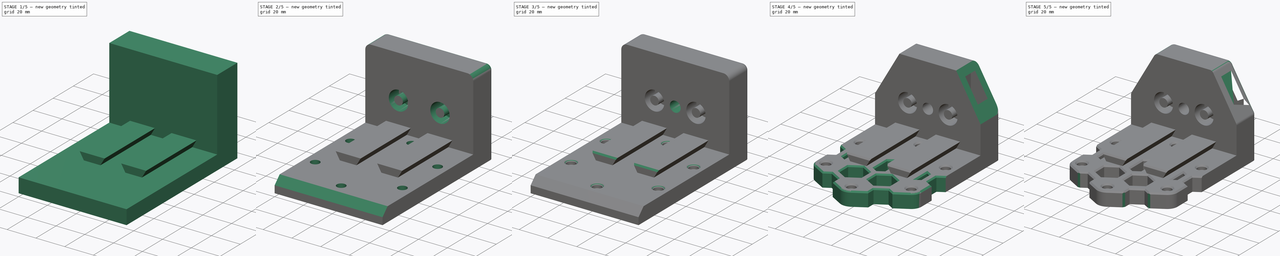
[diagram: build sequence overview — one tinted view per stage of 5, left to right]
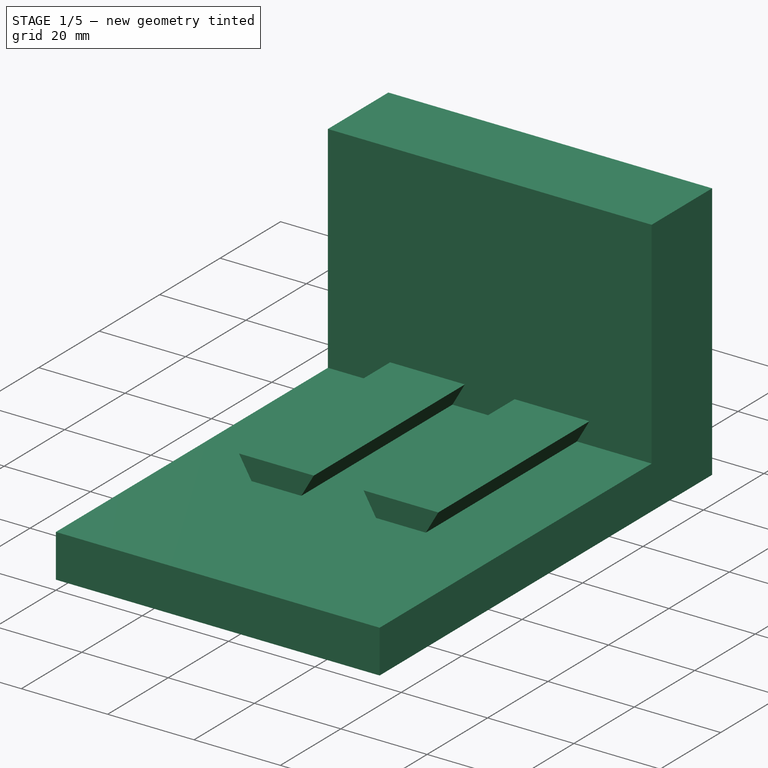
[diagram: stage 1 of 5 — iso view after this stage's code; geometry added in this stage tinted green]
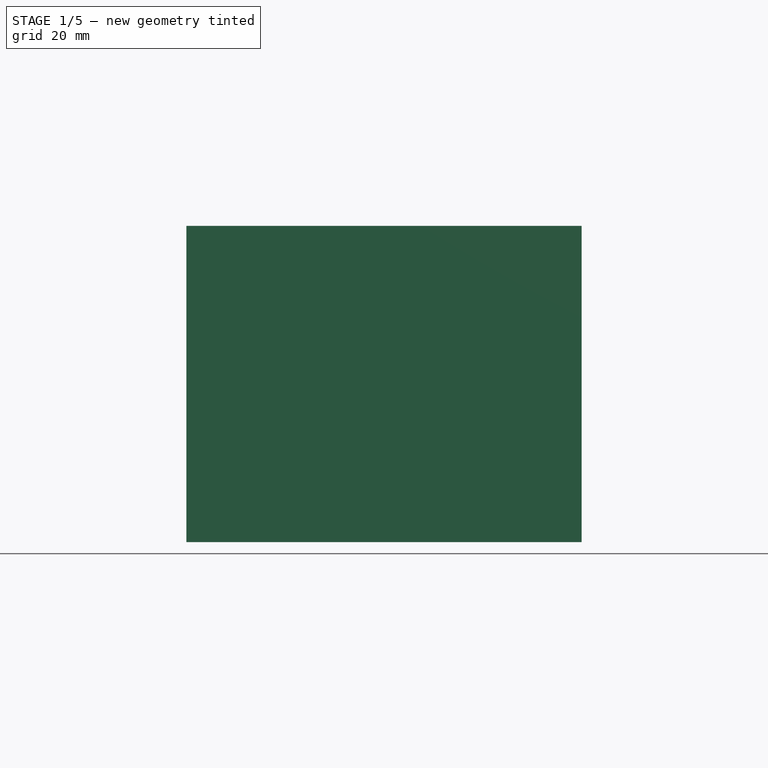
[diagram: stage 1 of 5 — front view after this stage's code; geometry added in this stage tinted green]
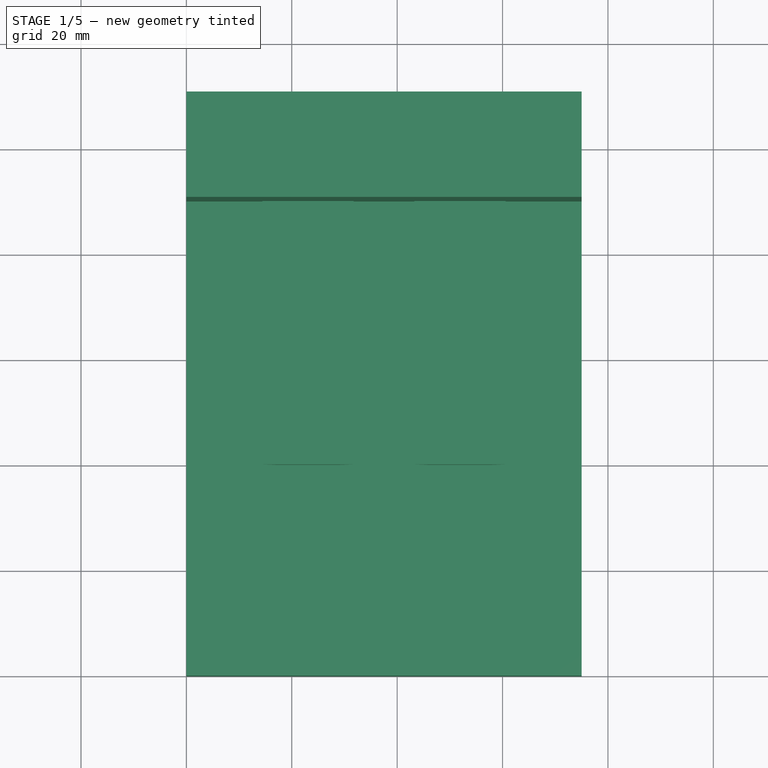
[diagram: stage 1 of 5 — top view after this stage's code; geometry added in this stage tinted green]
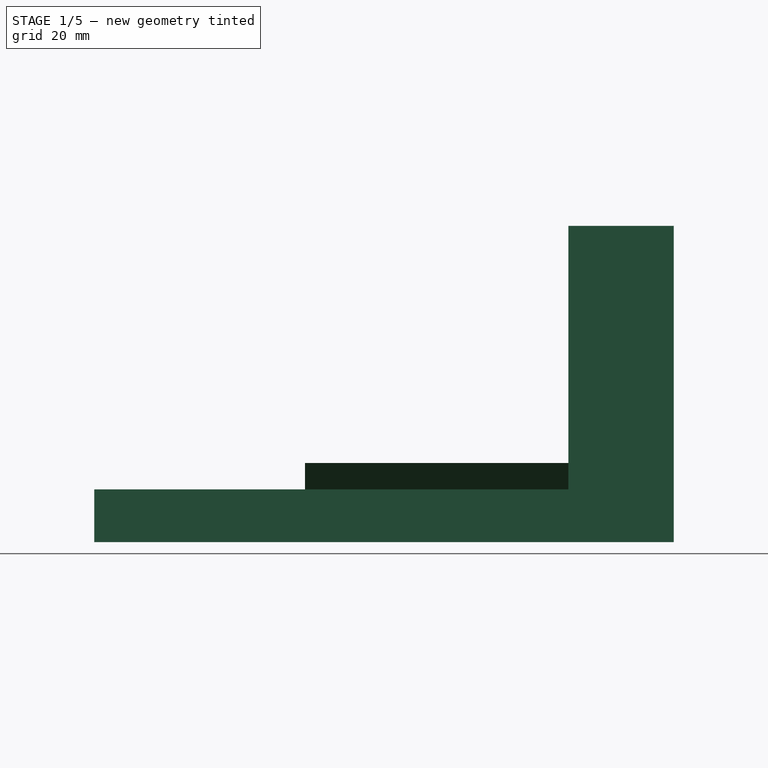
[diagram: stage 1 of 5 — right view after this stage's code; geometry added in this stage tinted green]
FCSTD DOCUMENT  (FreeCAD 0.19R14555 (Git shallow))
Label: toe_base_plate
License: All rights reserved
LicenseURL: http://en.wikipedia.org/wiki/All_rights_reserved
objects: Sketcher::SketchObject×18, PartDesign::Pad×10, PartDesign::Pocket×6, PartDesign::Chamfer×6, PartDesign::Fillet×3, PartDesign::Hole×2, PartDesign::Body×1
note: 73 computed .brp shape members not serialized (recipe doc carries the construction recipe); baked Part::Feature solids carry a one-line shape summary decoded from their .brp

FEATURE [Sketcher::SketchObject] Sketch
  FullyConstrained = true
  MapMode = 5
  Support = -> [XY_Plane]
  sketch-geometry (4):
    g0: LineSegment StartX=0 StartY=0 StartZ=0 EndX=75 EndY=0 EndZ=0
    g1: LineSegment StartX=75 StartY=0 StartZ=0 EndX=75 EndY=110 EndZ=0
    g2: LineSegment StartX=75 StartY=110 StartZ=0 EndX=0 EndY=110 EndZ=0
    g3: LineSegment StartX=0 StartY=110 StartZ=0 EndX=0 EndY=0 EndZ=0
  constraints (11):
    c: Coincident(g0,g1)
    c: Coincident(g1,g2)
    c: Coincident(g2,g3)
    c: Coincident(g3,g0)
    c: Horizontal(g0)
    c: Horizontal(g2)
    c: Vertical(g1)
    c: Vertical(g3)
    c: Coincident(g0,g-1)
    c: Distance(g2) = 75
    c: Distance(g1) = 110
FEATURE [PartDesign::Pad] Pad
  Direction = (1,1,1)
  Length = 10
  Length2 = 100
  Profile = -> Sketch
  Type = 0
FEATURE [Sketcher::SketchObject] Sketch001
  ExternalGeometry = -> [Pad]
  FullyConstrained = true
  MapMode = 5
  Placement = pos=(0,0,10) rot=(0,0,1;0rad)
  Support = -> [Pad]
  sketch-geometry (27):
    g0: LineSegment StartX=0 StartY=110 StartZ=0 EndX=75 EndY=110 EndZ=0
    g1: LineSegment StartX=75 StartY=110 StartZ=0 EndX=75 EndY=90 EndZ=0
    g2: LineSegment StartX=75 StartY=90 StartZ=0 EndX=0 EndY=90 EndZ=0
    g3: LineSegment StartX=0 StartY=90 StartZ=0 EndX=0 EndY=110 EndZ=0
    g4: LineSegment StartX=5.4 StartY=105 StartZ=0 EndX=17.4 EndY=105 EndZ=0
    g5: LineSegment StartX=17.4 StartY=105 StartZ=0 EndX=17.4 EndY=95 EndZ=0
    g6: LineSegment StartX=17.4 StartY=95 StartZ=0 EndX=5.4 EndY=95 EndZ=0
    g7: LineSegment StartX=5.4 StartY=95 StartZ=0 EndX=5.4 EndY=105 EndZ=0
    g8: LineSegment StartX=22.8 StartY=105 StartZ=0 EndX=34.8 EndY=105 EndZ=0
    g9: LineSegment StartX=34.8 StartY=105 StartZ=0 EndX=34.8 EndY=95 EndZ=0
    g10: LineSegment StartX=34.8 StartY=95 StartZ=0 EndX=22.8 EndY=95 EndZ=0
    g11: LineSegment StartX=22.8 StartY=95 StartZ=0 EndX=22.8 EndY=105 EndZ=0
    g12: LineSegment StartX=40.2 StartY=105 StartZ=0 EndX=52.2 EndY=105 EndZ=0
    g13: LineSegment StartX=52.2 StartY=105 StartZ=0 EndX=52.2 EndY=95 EndZ=0
    g14: LineSegment StartX=52.2 StartY=95 StartZ=0 EndX=40.2 EndY=95 EndZ=0
    g15: LineSegment StartX=40.2 StartY=95 StartZ=0 EndX=40.2 EndY=105 EndZ=0
    g16: LineSegment StartX=57.6 StartY=105 StartZ=0 EndX=69.6 EndY=105 EndZ=0
    g17: LineSegment StartX=69.6 StartY=105 StartZ=0 EndX=69.6 EndY=95 EndZ=0
    g18: LineSegment StartX=69.6 StartY=95 StartZ=0 EndX=57.6 EndY=95 EndZ=0
    g19: LineSegment StartX=57.6 StartY=95 StartZ=0 EndX=57.6 EndY=105 EndZ=0
    g20: LineSegment StartX=5.4 StartY=105 StartZ=0 EndX=0 EndY=105 EndZ=0
    g21: LineSegment StartX=17.4 StartY=105 StartZ=0 EndX=22.8 EndY=105 EndZ=0
    g22: LineSegment StartX=34.8 StartY=105 StartZ=0 EndX=40.2 EndY=105 EndZ=0
    g23: LineSegment StartX=52.2 StartY=105 StartZ=0 EndX=57.6 EndY=105 EndZ=0
    g24: LineSegment StartX=69.6 StartY=105 StartZ=0 EndX=75 EndY=105 EndZ=0
    g25: LineSegment StartX=5.4 StartY=105 StartZ=0 EndX=5.4 EndY=110 EndZ=0
    g26: LineSegment StartX=5.4 StartY=90 StartZ=0 EndX=5.4 EndY=95 EndZ=0
  constraints (76):
    c: Coincident(g0,g1)
    c: Coincident(g1,g2)
    c: Coincident(g2,g3)
    c: Coincident(g3,g0)
    c: Horizontal(g2)
    c: Vertical(g1)
    c: Vertical(g3)
    c: Coincident(g0,g-3)
    c: Coincident(g0,g-3)
    c: DistanceY(g1,g1) = 20
    c: Coincident(g4,g5)
    c: Coincident(g5,g6)
    c: Coincident(g6,g7)
    c: Coincident(g7,g4)
    c: Horizontal(g4)
    c: Horizontal(g6)
    c: Vertical(g5)
    c: Vertical(g7)
    c: Coincident(g8,g9)
    c: Coincident(g9,g10)
    c: Coincident(g10,g11)
    c: Coincident(g11,g8)
    c: Horizontal(g8)
    c: Horizontal(g10)
    c: Vertical(g9)
    c: Vertical(g11)
    c: Coincident(g12,g13)
    c: Coincident(g13,g14)
    c: Coincident(g14,g15)
    c: Coincident(g15,g12)
    c: Horizontal(g12)
    c: Horizontal(g14)
    c: Vertical(g13)
    c: Vertical(g15)
    c: Coincident(g16,g17)
    c: Coincident(g17,g18)
    c: Coincident(g18,g19)
    c: Coincident(g19,g16)
    c: Horizontal(g16)
    c: Horizontal(g18)
    c: Vertical(g17)
    c: Vertical(g19)
    c: Equal(g4,g8)
    c: Equal(g8,g12)
    c: Equal(g12,g16)
    c: Equal(g7,g11)
    c: Equal(g11,g15)
    c: Equal(g15,g19)
    c: Coincident(g20,g4)
    c: PointOnObject(g20,g3)
    c: Horizontal(g20)
    c: Coincident(g21,g4)
    c: Coincident(g21,g8)
    c: Coincident(g22,g8)
    c: Coincident(g22,g12)
    c: Coincident(g23,g12)
    c: Coincident(g23,g16)
    c: Coincident(g24,g16)
    c: PointOnObject(g24,g1)
    c: Horizontal(g21)
    c: Horizontal(g22)
    c: Horizontal(g23)
    c: Horizontal(g24)
    c: Equal(g20,g21)
    c: Equal(g21,g22)
    c: Equal(g22,g23)
    c: Equal(g23,g24)
    c: Coincident(g25,g4)
    c: PointOnObject(g25,g0)
    c: Vertical(g25)
    c: PointOnObject(g26,g2)
    c: Coincident(g26,g6)
    c: Vertical(g26)
    c: Equal(g26,g25)
    c: DistanceX(g4,g4) = 12
    c: DistanceY(g7,g7) = 10
FEATURE [PartDesign::Pad] Pad001  label="vertical_end"
  BaseFeature = -> Pad
  Direction = (1,1,1)
  Length = 45
  Length2 = 100
  Profile = -> Sketch001
  Type = 0
FEATURE [Sketcher::SketchObject] Sketch002
  ExternalGeometry = -> [Pad001]
  FullyConstrained = true
  MapMode = 5
  Placement = pos=(0,0,55) rot=(0,0,1;0rad)
  Support = -> [Pad001]
  sketch-geometry (4):
    g0: LineSegment StartX=0 StartY=110 StartZ=0 EndX=75 EndY=110 EndZ=0
    g1: LineSegment StartX=75 StartY=110 StartZ=0 EndX=75 EndY=90 EndZ=0
    g2: LineSegment StartX=75 StartY=90 StartZ=0 EndX=0 EndY=90 EndZ=0
    g3: LineSegment StartX=0 StartY=90 StartZ=0 EndX=0 EndY=110 EndZ=0
  constraints (10):
    c: Coincident(g0,g1)
    c: Coincident(g1,g2)
    c: Coincident(g2,g3)
    c: Coincident(g3,g0)
    c: Horizontal(g0)
    c: Horizontal(g2)
    c: Vertical(g1)
    c: Vertical(g3)
    c: Coincident(g0,g-3)
    c: Coincident(g1,g-4)
FEATURE [PartDesign::Pad] Pad002  label="top_cap"
  BaseFeature = -> Pad001
  Direction = (1,1,1)
  Length = 5
  Length2 = 100
  Profile = -> Sketch002
  Type = 0
FEATURE [Sketcher::SketchObject] Sketch003
  ExternalGeometry = -> [Pad002]
  FullyConstrained = true
  MapMode = 5
  Placement = pos=(0,90,0) rot=(1,0,0;1.5708rad)
  Support = -> [Pad002]
  sketch-geometry (28):
    g0: LineSegment StartX=0 StartY=10 StartZ=0 EndX=17.3094 EndY=10 EndZ=0
    g1: LineSegment StartX=17.3094 StartY=10 StartZ=0 EndX=14.4226 EndY=15 EndZ=0
    g2: LineSegment StartX=14.4226 StartY=15 StartZ=0 EndX=31.7321 EndY=15 EndZ=0
    g3: LineSegment StartX=31.7321 StartY=15 StartZ=0 EndX=28.8453 EndY=10 EndZ=0
    g4: LineSegment StartX=28.8453 StartY=10 StartZ=0 EndX=46.1547 EndY=10 EndZ=0
    g5: LineSegment StartX=46.1547 StartY=10 StartZ=0 EndX=43.2679 EndY=15 EndZ=0
    g6: LineSegment StartX=43.2679 StartY=15 StartZ=0 EndX=60.5774 EndY=15 EndZ=0
    g7: LineSegment StartX=60.5774 StartY=15 StartZ=0 EndX=57.6906 EndY=10 EndZ=0
    g8: LineSegment StartX=57.6906 StartY=10 StartZ=0 EndX=75 EndY=10 EndZ=0
    g9: LineSegment StartX=17.3094 StartY=10 StartZ=0 EndX=17.3094 EndY=15 EndZ=0
    g10: LineSegment StartX=17.3094 StartY=10 StartZ=0 EndX=19.6166 EndY=10 EndZ=0
    g11: LineSegment StartX=19.6166 StartY=10 StartZ=0 EndX=19.6166 EndY=12.3072 EndZ=0
    g12: LineSegment StartX=19.6166 StartY=12.3072 StartZ=0 EndX=21.9238 EndY=12.3072 EndZ=0
    g13: LineSegment StartX=21.9238 StartY=12.3072 StartZ=0 EndX=21.9238 EndY=10 EndZ=0
    g14: LineSegment StartX=21.9238 StartY=10 StartZ=0 EndX=24.2309 EndY=10 EndZ=0
    g15: LineSegment StartX=24.2309 StartY=10 StartZ=0 EndX=24.2309 EndY=12.3072 EndZ=0
    g16: LineSegment StartX=24.2309 StartY=12.3072 StartZ=0 EndX=26.5381 EndY=12.3072 EndZ=0
    g17: LineSegment StartX=26.5381 StartY=12.3072 StartZ=0 EndX=26.5381 EndY=10 EndZ=0
    g18: LineSegment StartX=26.5381 StartY=10 StartZ=0 EndX=28.8453 EndY=10 EndZ=0
    g19: LineSegment StartX=46.1547 StartY=10 StartZ=0 EndX=48.4619 EndY=10 EndZ=0
    g20: LineSegment StartX=48.4619 StartY=10 StartZ=0 EndX=48.4619 EndY=12.3072 EndZ=0
    g21: LineSegment StartX=48.4619 StartY=12.3072 StartZ=0 EndX=50.7691 EndY=12.3072 EndZ=0
    g22: LineSegment StartX=50.7691 StartY=12.3072 StartZ=0 EndX=50.7691 EndY=10 EndZ=0
    g23: LineSegment StartX=50.7691 StartY=10 StartZ=0 EndX=53.0762 EndY=10 EndZ=0
    g24: LineSegment StartX=53.0762 StartY=10 StartZ=0 EndX=53.0762 EndY=12.3072 EndZ=0
    g25: LineSegment StartX=53.0762 StartY=12.3072 StartZ=0 EndX=55.3834 EndY=12.3072 EndZ=0
    g26: LineSegment StartX=55.3834 StartY=12.3072 StartZ=0 EndX=55.3834 EndY=10 EndZ=0
    g27: LineSegment StartX=55.3834 StartY=10 StartZ=0 EndX=57.6906 EndY=10 EndZ=0
  constraints (81):
    c: Coincident(g-3,g0)
    c: PointOnObject(g0,g-3)
    c: Coincident(g0,g1)
    c: Coincident(g1,g2)
    c: Horizontal(g2)
    c: Coincident(g2,g3)
    c: PointOnObject(g3,g-3)
    c: Coincident(g3,g4)
    c: PointOnObject(g4,g-3)
    c: Coincident(g4,g5)
    c: Coincident(g5,g6)
    c: Horizontal(g6)
    c: Coincident(g6,g7)
    c: PointOnObject(g7,g-3)
    c: Coincident(g7,g8)
    c: Coincident(g8,g-3)
    c: Equal(g0,g2)
    c: Equal(g2,g4)
    c: Equal(g4,g6)
    c: Equal(g6,g8)
    c: Equal(g1,g3)
    c: Equal(g3,g5)
    c: Equal(g5,g7)
    c: Parallel(g1,g5)
    c: Angle(g1) = 2.0944
    c: Coincident(g9,g0)
    c: PointOnObject(g9,g2)
    c: Vertical(g9)
    c: DistanceY(g9,g9) = 5
    c: Coincident(g1,g10)
    c: PointOnObject(g10,g-3)
    c: Coincident(g10,g11)
    c: Vertical(g11)
    c: Coincident(g11,g12)
    c: Horizontal(g12)
    c: Coincident(g12,g13)
    c: PointOnObject(g13,g-3)
    c: Vertical(g13)
    c: Coincident(g13,g14)
    c: PointOnObject(g14,g-3)
    c: Coincident(g14,g15)
    c: Vertical(g15)
    c: Coincident(g15,g16)
    c: Horizontal(g16)
    c: Coincident(g16,g17)
    c: PointOnObject(g17,g-3)
    c: Coincident(g17,g18)
    c: Coincident(g18,g3)
    c: Vertical(g17)
    c: Coincident(g5,g19)
    c: PointOnObject(g19,g-3)
    c: Coincident(g19,g20)
    c: Vertical(g20)
    c: Coincident(g20,g21)
    c: Horizontal(g21)
    c: Coincident(g21,g22)
    c: PointOnObject(g22,g-3)
    c: Vertical(g22)
    c: Coincident(g22,g23)
    c: PointOnObject(g23,g-3)
    c: Coincident(g23,g24)
    c: Vertical(g24)
    c: Coincident(g24,g25)
    c: Horizontal(g25)
    c: Coincident(g25,g26)
    c: PointOnObject(g26,g-3)
    c: Vertical(g26)
    c: Coincident(g26,g27)
    c: Coincident(g27,g7)
    c: Equal(g10,g14)
    c: Equal(g14,g18)
    c: Equal(g18,g12)
    c: Equal(g12,g16)
    c: Equal(g16,g19)
    c: Equal(g19,g21)
    c: Equal(g21,g23)
    c: Equal(g23,g25)
    c: Equal(g25,g26)
    c: Equal(g13,g15)
    c: Equal(g17,g20)
    c: Equal(g22,g24)
FEATURE [PartDesign::Pad] Pad003  label="dove_tails"
  BaseFeature = -> Pad002
  Direction = (1,1,1)
  Length = 45
  Length2 = 100
  Profile = -> Sketch003
  Type = 0
FEATURE [Sketcher::SketchObject] Sketch004
  ExternalGeometry = -> [Pad003]
  FullyConstrained = true
  MapMode = 5
  Placement = pos=(0,45,0) rot=(1,0,0;1.5708rad)
  Support = -> [Pad003]
  sketch-geometry (8):
    g0: LineSegment StartX=17.3094 StartY=10 StartZ=0 EndX=14.4226 EndY=15 EndZ=0
    g1: LineSegment StartX=14.4226 StartY=15 StartZ=0 EndX=31.7321 EndY=15 EndZ=0
    g2: LineSegment StartX=31.7321 StartY=15 StartZ=0 EndX=28.8453 EndY=10 EndZ=0
    g3: LineSegment StartX=28.8453 StartY=10 StartZ=0 EndX=17.3094 EndY=10 EndZ=0
    g4: LineSegment StartX=46.1547 StartY=10 StartZ=0 EndX=43.2679 EndY=15 EndZ=0
    g5: LineSegment StartX=43.2679 StartY=15 StartZ=0 EndX=60.5774 EndY=15 EndZ=0
    g6: LineSegment StartX=60.5774 StartY=15 StartZ=0 EndX=57.6906 EndY=10 EndZ=0
    g7: LineSegment StartX=57.6906 StartY=10 StartZ=0 EndX=46.1547 EndY=10 EndZ=0
  constraints (16):
    c: Coincident(g-3,g0)
    c: Coincident(g0,g-3)
    c: Coincident(g0,g1)
    c: Coincident(g1,g-4)
    c: Coincident(g1,g2)
    c: Coincident(g2,g-4)
    c: Coincident(g2,g3)
    c: Coincident(g3,g0)
    c: Coincident(g-5,g4)
    c: Coincident(g4,g-5)
    c: Coincident(g4,g5)
    c: Coincident(g5,g-6)
    c: Coincident(g5,g6)
    c: Coincident(g6,g-6)
    c: Coincident(g6,g7)
    c: Coincident(g7,g4)
FEATURE [PartDesign::Pad] Pad004  label="dove_tail_ends"
  BaseFeature = -> Pad003
  Direction = (1,1,1)
  Length = 5
  Length2 = 100
  Profile = -> Sketch004
  Type = 0
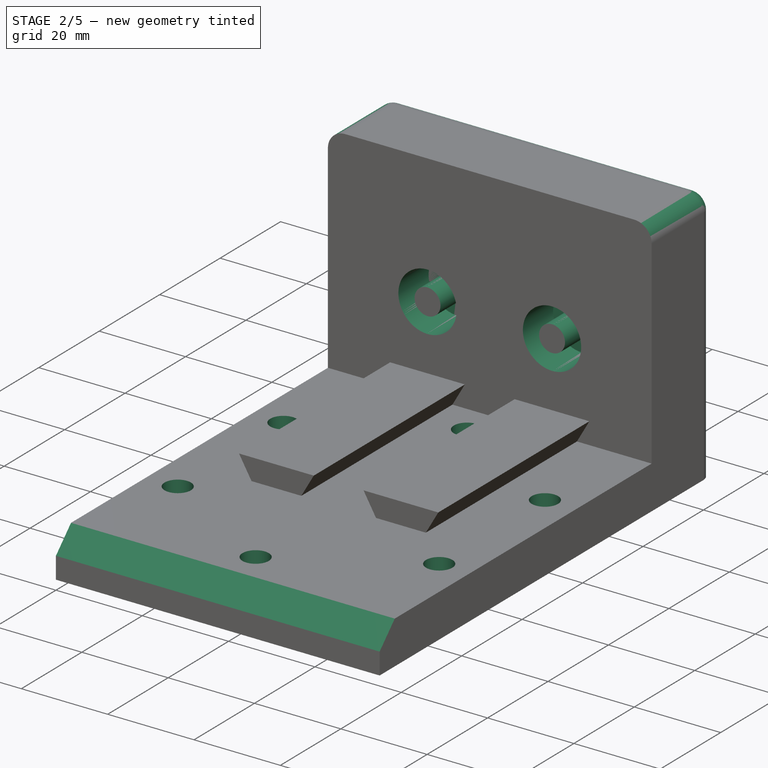
[diagram: stage 2 of 5 — iso view after this stage's code; geometry added in this stage tinted green]
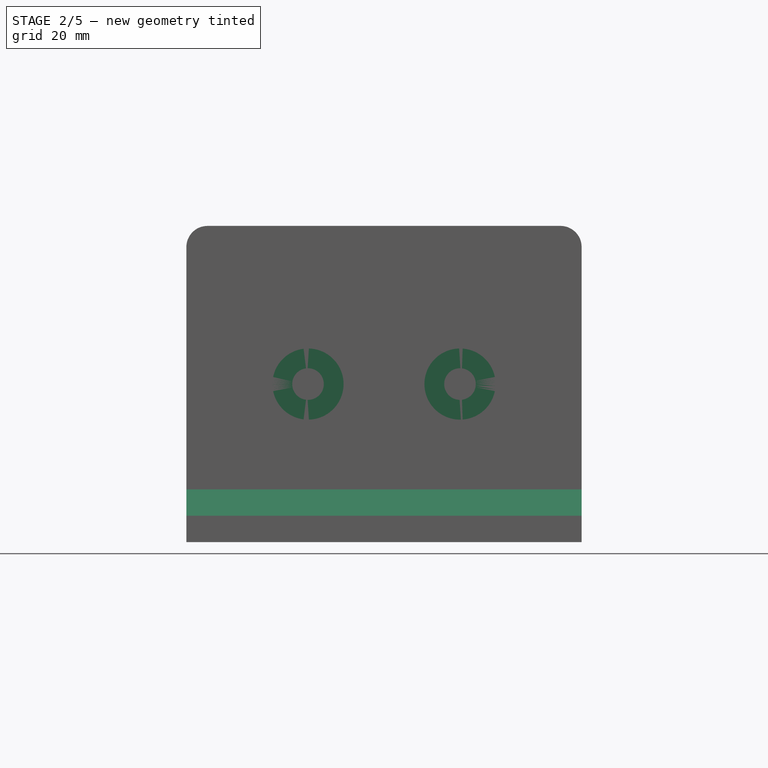
[diagram: stage 2 of 5 — front view after this stage's code; geometry added in this stage tinted green]
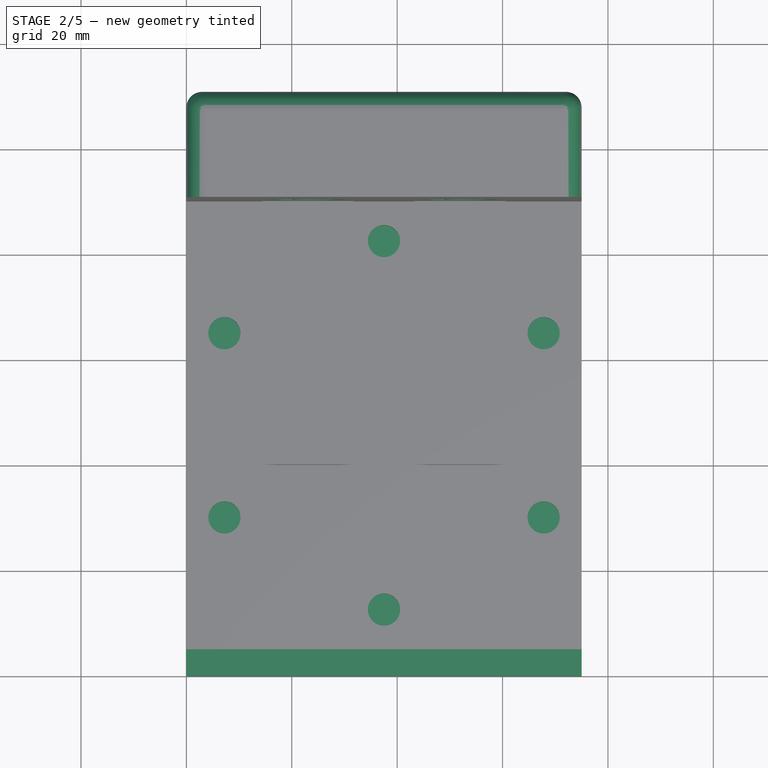
[diagram: stage 2 of 5 — top view after this stage's code; geometry added in this stage tinted green]
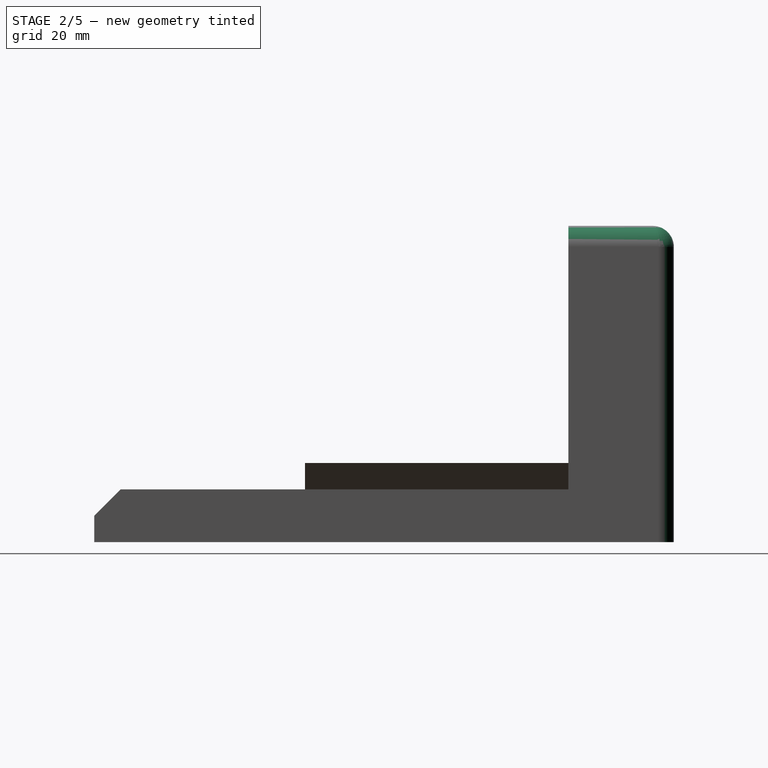
[diagram: stage 2 of 5 — right view after this stage's code; geometry added in this stage tinted green]
FEATURE [Sketcher::SketchObject] Sketch005
  ExternalGeometry = -> [Pad004]
  FullyConstrained = true
  MapMode = 5
  Placement = pos=(0,90,0) rot=(1,0,0;1.5708rad)
  Support = -> [Pad004]
  sketch-geometry (6):
    g0: Circle CenterX=23.0774 CenterY=29.9904 CenterZ=0 NormalX=0 NormalY=0 NormalZ=1 AngleXU=0 Radius=10
    g1: Circle CenterX=51.9226 CenterY=29.9904 CenterZ=0 NormalX=0 NormalY=0 NormalZ=1 AngleXU=0 Radius=10
    g2: LineSegment StartX=14.4226 StartY=15 StartZ=0 EndX=23.0774 EndY=29.9904 EndZ=0
    g3: LineSegment StartX=31.7321 StartY=15 StartZ=0 EndX=23.0774 EndY=29.9904 EndZ=0
    g4: LineSegment StartX=43.2679 StartY=15 StartZ=0 EndX=51.9226 EndY=29.9904 EndZ=0
    g5: LineSegment StartX=60.5774 StartY=15 StartZ=0 EndX=51.9226 EndY=29.9904 EndZ=0
  constraints (14):
    c: Equal(g0,g1)
    c: Coincident(g2,g0)
    c: Coincident(g3,g-6)
    c: Coincident(g3,g0)
    c: Coincident(g4,g-7)
    c: Coincident(g4,g1)
    c: Coincident(g5,g1)
    c: Equal(g2,g3)
    c: Equal(g3,g4)
    c: Equal(g4,g5)
    c: Radius(g1) = 10
    c: Coincident(g5,g-4)
    c: Angle(g2) = 1.0472
    c: Coincident(g2,g-3)
FEATURE [PartDesign::Pad] Pad005
  BaseFeature = -> Pad004
  Direction = (1,1,1)
  Length = 10
  Length2 = 100
  Profile = -> Sketch005
  Reversed = true
  Type = 1
FEATURE [Sketcher::SketchObject] Sketch006
  ExternalGeometry = -> [Pad005]
  FullyConstrained = true
  MapMode = 5
  Placement = pos=(4.23e-14,90,-7.38e-14) rot=(1,0,0;1.5708rad)
  Support = -> [Pad005]
  sketch-geometry (4):
    g0: Circle CenterX=23.0774 CenterY=29.9904 CenterZ=0 NormalX=0 NormalY=0 NormalZ=1 AngleXU=0 Radius=6.75
    g1: Circle CenterX=51.9226 CenterY=29.9904 CenterZ=0 NormalX=0 NormalY=0 NormalZ=1 AngleXU=0 Radius=6.75
    g2: Circle CenterX=23.0774 CenterY=29.9904 CenterZ=0 NormalX=0 NormalY=0 NormalZ=1 AngleXU=0 Radius=3
    g3: Circle CenterX=51.9226 CenterY=29.9904 CenterZ=0 NormalX=0 NormalY=0 NormalZ=1 AngleXU=0 Radius=3
  constraints (8):
    c: Coincident(g0,g-3)
    c: Coincident(g1,g-4)
    c: Equal(g0,g1)
    c: Diameter(g0) = 13.5
    c: Coincident(g2,g0)
    c: Coincident(g3,g1)
    c: Equal(g2,g3)
    c: Diameter(g2) = 6
FEATURE [PartDesign::Pocket] Pocket  label="spring_recess"
  BaseFeature = -> Pad005
  Length = 10
  Length2 = 100
  Profile = -> Sketch006
  Type = 0
FEATURE [PartDesign::Fillet] Fillet
  Base = -> Pocket [Edge65,Edge68,Edge75]
  BaseFeature = -> Pocket
  Radius = 4
  SupportTransform = false
FEATURE [PartDesign::Fillet] Fillet001
  Base = -> Fillet [Edge13,Edge36]
  BaseFeature = -> Fillet
  Radius = 3
  SupportTransform = false
FEATURE [PartDesign::Chamfer] Chamfer
  Angle = 45
  Base = -> Fillet001 [Edge69]
  BaseFeature = -> Fillet001
  ChamferType = 0
  FlipDirection = false
  Size = 5
  Size2 = 1
  SupportTransform = false
FEATURE [Sketcher::SketchObject] Sketch007
  ExternalGeometry = -> [Chamfer]
  FullyConstrained = true
  MapMode = 5
  Placement = pos=(0,0,10) rot=(0,0,1;0rad)
  Support = -> [Chamfer]
  sketch-geometry (19):
    g0: LineSegment StartX=37.5 StartY=12.5257 StartZ=0 EndX=67.7887 EndY=30.0128 EndZ=0
    g1: LineSegment StartX=67.7887 StartY=30.0128 StartZ=0 EndX=67.7887 EndY=64.9872 EndZ=0
    g2: LineSegment StartX=67.7887 StartY=64.9872 StartZ=0 EndX=37.5 EndY=82.4743 EndZ=0
    g3: LineSegment StartX=37.5 StartY=82.4743 StartZ=0 EndX=7.21132 EndY=64.9872 EndZ=0
    g4: LineSegment StartX=7.21132 StartY=64.9872 StartZ=0 EndX=7.21132 EndY=30.0128 EndZ=0
    g5: LineSegment StartX=7.21132 StartY=30.0128 StartZ=0 EndX=37.5 EndY=12.5257 EndZ=0
    g6: Circle CenterX=37.5 CenterY=47.5 CenterZ=0 NormalX=0 NormalY=0 NormalZ=1 AngleXU=0 Radius=34.9743
    g7: LineSegment StartX=-9e-16 StartY=90 StartZ=0 EndX=7.21132 EndY=64.9872 EndZ=0
    g8: LineSegment StartX=75 StartY=90 StartZ=0 EndX=67.7887 EndY=64.9872 EndZ=0
    g9: LineSegment StartX=75 StartY=5 StartZ=0 EndX=67.7887 EndY=30.0128 EndZ=0
    g10: LineSegment StartX=0 StartY=5 StartZ=0 EndX=7.21132 EndY=30.0128 EndZ=0
    g11: LineSegment StartX=60.5774 StartY=64.9872 StartZ=0 EndX=67.7887 EndY=64.9872 EndZ=0
    g12: LineSegment StartX=67.7887 StartY=64.9872 StartZ=0 EndX=75 EndY=64.9872 EndZ=0
    g13: Circle CenterX=7.21132 CenterY=64.9872 CenterZ=0 NormalX=0 NormalY=0 NormalZ=1 AngleXU=0 Radius=3.05
    g14: Circle CenterX=37.5 CenterY=82.4743 CenterZ=0 NormalX=0 NormalY=0 NormalZ=1 AngleXU=0 Radius=3.05
    g15: Circle CenterX=67.7887 CenterY=64.9872 CenterZ=0 NormalX=0 NormalY=0 NormalZ=1 AngleXU=0 Radius=3.05
    g16: Circle CenterX=67.7887 CenterY=30.0128 CenterZ=0 NormalX=0 NormalY=0 NormalZ=1 AngleXU=0 Radius=3.05
    g17: Circle CenterX=37.5 CenterY=12.5257 CenterZ=0 NormalX=0 NormalY=0 NormalZ=1 AngleXU=0 Radius=3.05
    g18: Circle CenterX=7.21132 CenterY=30.0128 CenterZ=0 NormalX=0 NormalY=0 NormalZ=1 AngleXU=0 Radius=3.05
  constraints (39):
    c: Coincident(g0,g1)
    c: Coincident(g1,g2)
    c: Coincident(g2,g3)
    c: Coincident(g3,g4)
    c: Coincident(g4,g5)
    c: Coincident(g5,g0)
    c: Equal(g0, g1-g5) x5
    c: PointOnObject(g0,g6)
    c: PointOnObject(g1,g6)
    c: PointOnObject(g2,g6)
    c: PointOnObject(g3,g6)
    c: PointOnObject(g4,g6)
    c: PointOnObject(g5,g6)
    c: Coincident(g7,g-3)
    c: Coincident(g7,g3)
    c: Coincident(g8,g-4)
    c: Coincident(g8,g1)
    c: Coincident(g9,g-5)
    c: Coincident(g9,g0)
    c: Coincident(g10,g-6)
    c: Coincident(g10,g4)
    c: Equal(g10,g8)
    c: Equal(g8,g9)
    c: Equal(g9,g7)
    c: PointOnObject(g11,g-9)
    c: Coincident(g11,g1)
    c: Coincident(g11,g12)
    c: PointOnObject(g12,g-10)
    c: Equal(g11,g12)
    c: Horizontal(g11)
    c: Horizontal(g12)
    c: Coincident(g13,g3)
    c: Coincident(g14,g2)
    c: Coincident(g15,g1)
    c: Coincident(g16,g0)
    c: Coincident(g17,g0)
    c: Coincident(g18,g4)
    c: Diameter(g18) = 6.1
    c: Equal(g18, g13-g17) x5
FEATURE [PartDesign::Pocket] Pocket001  label="screw_recesses"
  BaseFeature = -> Chamfer
  Length = 3
  Length2 = 100
  Profile = -> Sketch007
  Type = 0
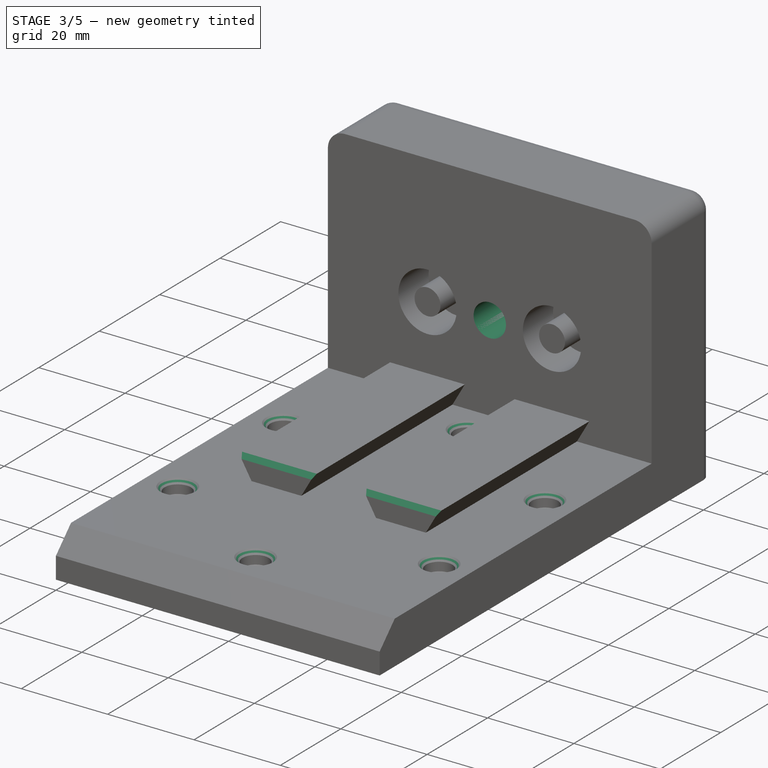
[diagram: stage 3 of 5 — iso view after this stage's code; geometry added in this stage tinted green]
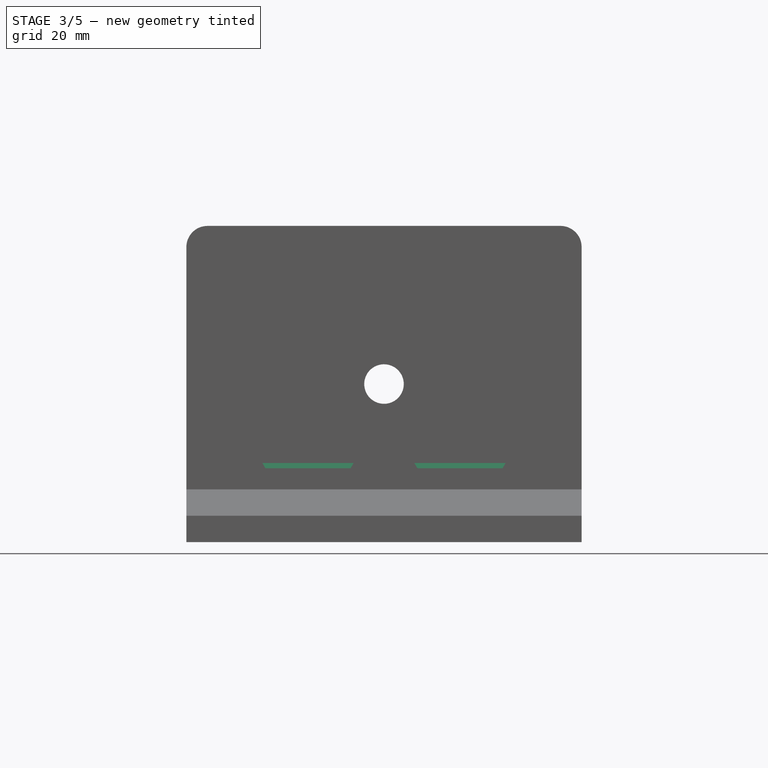
[diagram: stage 3 of 5 — front view after this stage's code; geometry added in this stage tinted green]
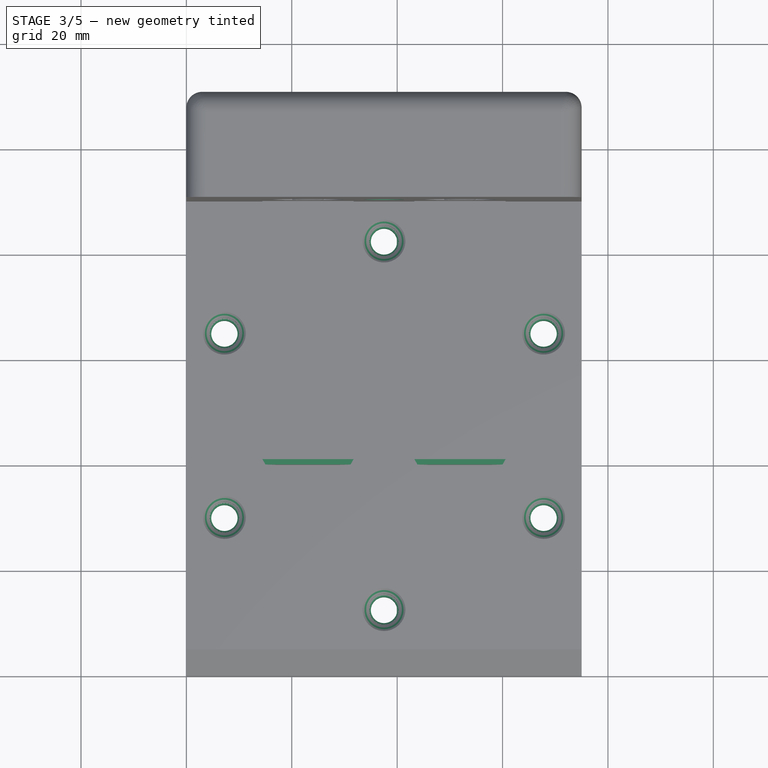
[diagram: stage 3 of 5 — top view after this stage's code; geometry added in this stage tinted green]
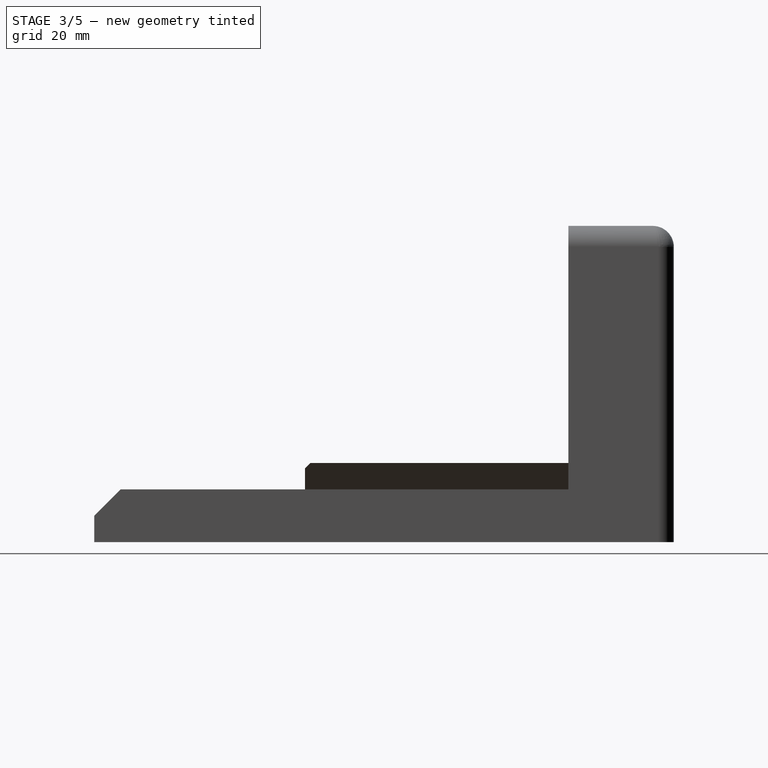
[diagram: stage 3 of 5 — right view after this stage's code; geometry added in this stage tinted green]
FEATURE [PartDesign::Chamfer] Chamfer001
  Angle = 45
  Base = -> Pocket001 [Edge32,Edge33,Edge30,Edge35,Edge34,Edge31]
  BaseFeature = -> Pocket001
  ChamferType = 0
  FlipDirection = false
  Size = 1
  Size2 = 1
  SupportTransform = false
FEATURE [Sketcher::SketchObject] Sketch008
  ExternalGeometry = -> [Chamfer001]
  FullyConstrained = true
  MapMode = 5
  Placement = pos=(0,0,7) rot=(0,0,1;0rad)
  Support = -> [Chamfer001]
  sketch-geometry (6):
    g0: Circle CenterX=7.21132 CenterY=64.9872 CenterZ=0 NormalX=0 NormalY=0 NormalZ=1 AngleXU=0 Radius=1.5
    g1: Circle CenterX=67.7887 CenterY=30.0128 CenterZ=0 NormalX=0 NormalY=0 NormalZ=1 AngleXU=0 Radius=1.5
    g2: Circle CenterX=37.5 CenterY=12.5257 CenterZ=0 NormalX=0 NormalY=0 NormalZ=1 AngleXU=0 Radius=1.5
    g3: Circle CenterX=7.21132 CenterY=30.0128 CenterZ=0 NormalX=0 NormalY=0 NormalZ=1 AngleXU=0 Radius=1.5
    g4: Circle CenterX=67.7887 CenterY=64.9872 CenterZ=0 NormalX=0 NormalY=0 NormalZ=1 AngleXU=0 Radius=1.5
    g5: Circle CenterX=37.5 CenterY=82.4743 CenterZ=0 NormalX=0 NormalY=0 NormalZ=1 AngleXU=0 Radius=1.5
  constraints (9):
    c: Coincident(g0,g-4)
    c: Coincident(g1,g-3)
    c: Coincident(g2,g-5)
    c: Coincident(g3,g-6)
    c: Coincident(g4,g-7)
    c: Coincident(g5,g-8)
    c: Diameter(g0) = 3
    c: Equal(g0,g5)
    c: Equal(g0, g1-g4) x4
FEATURE [PartDesign::Hole] Hole  label="screw_holes"
  BaseFeature = -> Chamfer001
  Depth = 25
  DepthType = 0
  Diameter = 5
  DrillForDepth = false
  DrillPoint = 1
  DrillPointAngle = 118
  HoleCutCountersinkAngle = 90
  HoleCutCustomValues = false
  HoleCutDepth = 0
  HoleCutDiameter = 6.1
  HoleCutType = 2
  ModelActualThread = false
  Profile = -> Sketch008
  Tapered = false
  TaperedAngle = 90
  ThreadAngle = 0
  ThreadClass = 0
  ThreadCutOffInner = 0
  ThreadCutOffOuter = 0
  ThreadDirection = 0
  ThreadFit = 0
  ThreadPitch = 0
  ThreadSize = 6
  ThreadType = 3
  Threaded = false
FEATURE [PartDesign::Chamfer] Chamfer002
  Angle = 45
  Base = -> Hole [Edge59,Edge54]
  BaseFeature = -> Hole
  ChamferType = 0
  FlipDirection = false
  Size = 1
  Size2 = 1
  SupportTransform = false
FEATURE [Sketcher::SketchObject] Sketch009
  ExternalGeometry = -> [Chamfer002]
  FullyConstrained = true
  MapMode = 5
  Placement = pos=(0,110,0) rot=(0,0.707107,0.707107;3.14159rad)
  Support = -> [Chamfer002]
  sketch-geometry (3):
    g0: LineSegment StartX=-51.9226 StartY=29.9904 StartZ=0 EndX=-37.5 EndY=29.9904 EndZ=0
    g1: LineSegment StartX=-37.5 StartY=29.9904 StartZ=0 EndX=-23.0774 EndY=29.9904 EndZ=0
    g2: Circle CenterX=-37.5 CenterY=29.9904 CenterZ=0 NormalX=0 NormalY=0 NormalZ=1 AngleXU=0 Radius=7
  constraints (7):
    c: Coincident(g0,g-3)
    c: Horizontal(g0)
    c: Coincident(g0,g1)
    c: Coincident(g1,g-4)
    c: Equal(g0,g1)
    c: Coincident(g2,g0)
    c: Diameter(g2) = 14
FEATURE [PartDesign::Pad] Pad006
  BaseFeature = -> Chamfer002
  Direction = (1,1,1)
  Length = 10
  Length2 = 100
  Profile = -> Sketch009
  Type = 3
  UpToFace = -> Chamfer002 [Face9]
FEATURE [Sketcher::SketchObject] Sketch010
  ExternalGeometry = -> [Pad006]
  FullyConstrained = true
  MapMode = 5
  Placement = pos=(0,110,0) rot=(0,0.707107,0.707107;3.14159rad)
  Support = -> [Pad006]
  sketch-geometry (3):
    g0: LineSegment StartX=-51.9226 StartY=29.9904 StartZ=0 EndX=-37.5 EndY=29.9904 EndZ=0
    g1: LineSegment StartX=-37.5 StartY=29.9904 StartZ=0 EndX=-23.0774 EndY=29.9904 EndZ=0
    g2: Circle CenterX=-37.5 CenterY=29.9904 CenterZ=0 NormalX=0 NormalY=0 NormalZ=1 AngleXU=0 Radius=4
  constraints (7):
    c: Coincident(g0,g-3)
    c: Coincident(g0,g1)
    c: Coincident(g1,g-4)
    c: Equal(g1,g0)
    c: Horizontal(g0)
    c: Coincident(g2,g0)
    c: Diameter(g2) = 8
FEATURE [PartDesign::Hole] Hole001
  BaseFeature = -> Pad006
  Depth = 25
  DepthType = 1
  Diameter = 7.5
  DrillForDepth = false
  DrillPoint = 1
  DrillPointAngle = 118
  HoleCutCountersinkAngle = 90
  HoleCutCustomValues = false
  HoleCutDepth = 6.75
  HoleCutDiameter = 12
  HoleCutType = 1
  ModelActualThread = false
  Profile = -> Sketch010
  Tapered = false
  TaperedAngle = 90
  ThreadAngle = 0
  ThreadClass = 0
  ThreadCutOffInner = 0
  ThreadCutOffOuter = 0
  ThreadDirection = 0
  ThreadFit = 2
  ThreadPitch = 0
  ThreadSize = 9
  ThreadType = 3
  Threaded = false
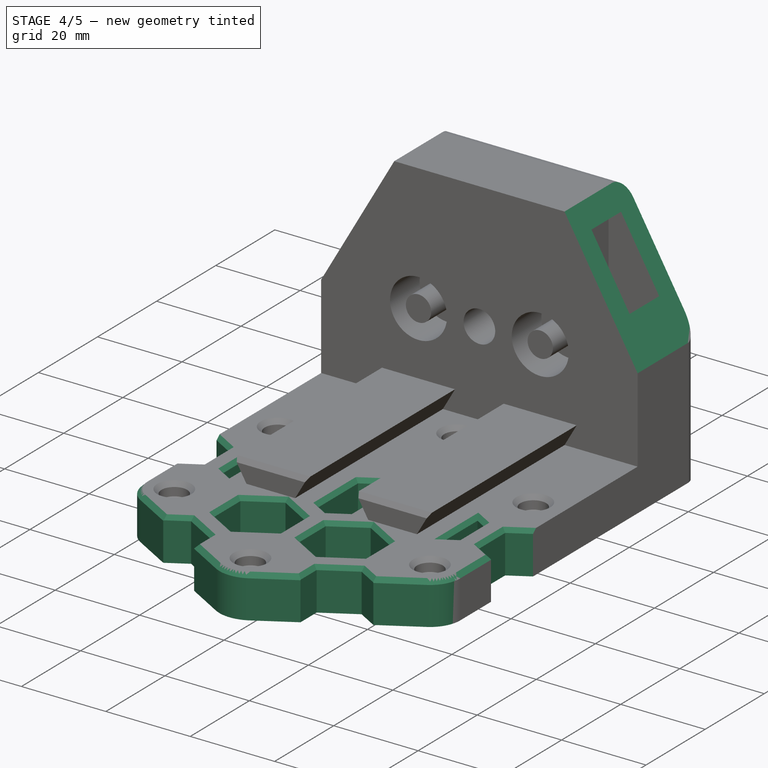
[diagram: stage 4 of 5 — iso view after this stage's code; geometry added in this stage tinted green]
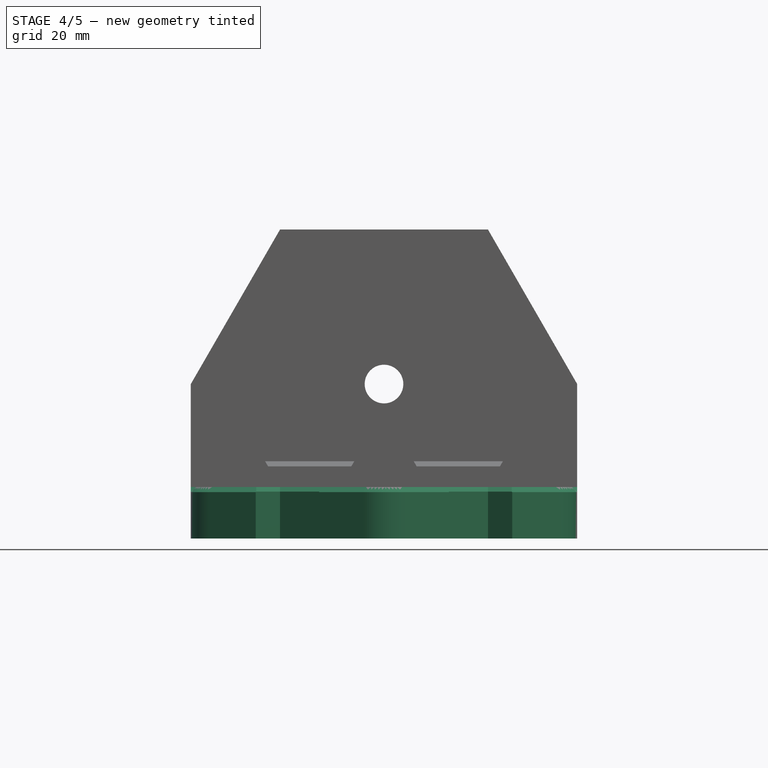
[diagram: stage 4 of 5 — front view after this stage's code; geometry added in this stage tinted green]
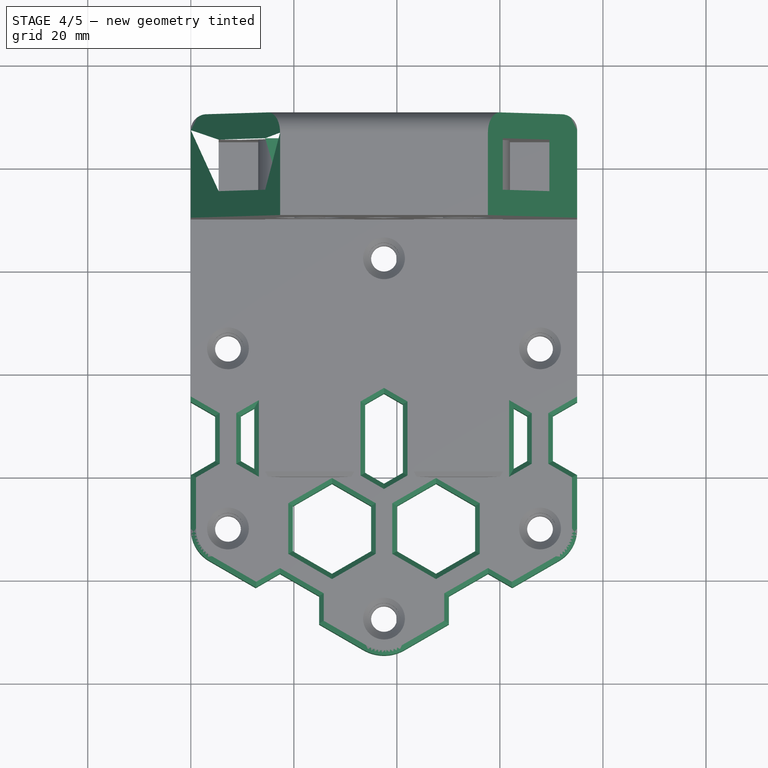
[diagram: stage 4 of 5 — top view after this stage's code; geometry added in this stage tinted green]
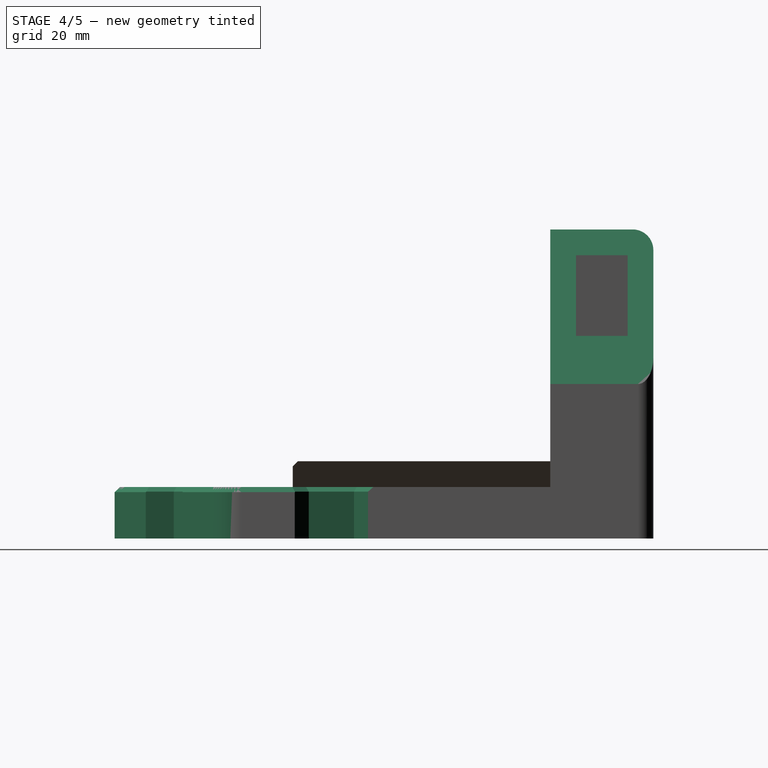
[diagram: stage 4 of 5 — right view after this stage's code; geometry added in this stage tinted green]
FEATURE [Sketcher::SketchObject] Sketch011
  ExternalGeometry = -> [Hole001]
  FullyConstrained = true
  MapMode = 5
  Placement = pos=(0,0,10) rot=(0,0,1;0rad)
  Support = -> [Hole001]
  sketch-geometry (10):
    g0: LineSegment StartX=7.21132 StartY=30.0128 StartZ=0 EndX=37.5 EndY=12.5257 EndZ=0
    g1: LineSegment StartX=37.5 StartY=12.5257 StartZ=0 EndX=67.7887 EndY=30.0128 EndZ=0
    g2: LineSegment StartX=3.60566 StartY=23.7676 StartZ=0 EndX=33.5 EndY=6.50813 EndZ=0
    g3: LineSegment StartX=41.5 StartY=6.50813 StartZ=0 EndX=71.3943 EndY=23.7676 EndZ=0
    g4: ArcOfCircle CenterX=37.5 CenterY=13.4363 CenterZ=0 NormalX=0 NormalY=0 NormalZ=1 AngleXU=0 Radius=8 StartAngle=4.18879 EndAngle=5.23599
    g5: ArcOfCircle CenterX=7.21132 CenterY=30.0128 CenterZ=0 NormalX=0 NormalY=0 NormalZ=1 AngleXU=0 Radius=7.21132 StartAngle=3.14159 EndAngle=4.18879
    g6: ArcOfCircle CenterX=67.7887 CenterY=30.0128 CenterZ=0 NormalX=0 NormalY=0 NormalZ=1 AngleXU=0 Radius=7.21132 StartAngle=5.23599 EndAngle=6.28319
    g7: LineSegment StartX=0 StartY=30.0128 StartZ=0 EndX=0 EndY=0 EndZ=0
    g8: LineSegment StartX=0 StartY=0 StartZ=0 EndX=75 EndY=0 EndZ=0
    g9: LineSegment StartX=75 StartY=0 StartZ=0 EndX=75 EndY=30.0129 EndZ=0
  constraints (23):
    c: Coincident(g0,g-3)
    c: Coincident(g0,g-4)
    c: Coincident(g0,g1)
    c: Coincident(g1,g-5)
    c: Parallel(g2,g0)
    c: Parallel(g1,g3)
    c: Tangent(g2,g4) = -1.5708
    c: Tangent(g3,g4) = -1.5708
    c: Radius(g4) = 8
    c: Coincident(g5,g0)
    c: Coincident(g6,g1)
    c: Equal(g5,g6)
    c: Tangent(g6,g-6)
    c: Coincident(g7,g-1)
    c: Vertical(g7)
    c: Coincident(g7,g8)
    c: Coincident(g8,g-8)
    c: Coincident(g8,g9)
    c: Coincident(g5,g7)
    c: Tangent(g3,g6) = -1.5708
    c: Tangent(g2,g5) = -1.5708
    c: Block(g6)
    c: Coincident(g9,g6)
FEATURE [PartDesign::Pocket] Pocket002
  BaseFeature = -> Hole001
  Length = 5
  Length2 = 100
  Profile = -> Sketch011
  Type = 1
FEATURE [Sketcher::SketchObject] Sketch012
  ExternalGeometry = -> [Pocket002]
  FullyConstrained = true
  MapMode = 5
  Placement = pos=(0,0,10) rot=(0,0,1;0rad)
  Support = -> [Pocket002]
  sketch-geometry (77):
    g0: LineSegment StartX=7.21132 StartY=30.0128 StartZ=0 EndX=37.5 EndY=12.5257 EndZ=0
    g1: LineSegment StartX=37.5 StartY=12.5257 StartZ=0 EndX=67.7887 EndY=30.0128 EndZ=0
    g2: LineSegment StartX=67.7887 StartY=30.0128 StartZ=0 EndX=67.7887 EndY=64.9872 EndZ=0
    g3: LineSegment StartX=67.7887 StartY=64.9872 StartZ=0 EndX=37.5 EndY=82.4743 EndZ=0
    g4: LineSegment StartX=37.5 StartY=82.4743 StartZ=0 EndX=7.21132 EndY=64.9872 EndZ=0
    g5: LineSegment StartX=7.21132 StartY=64.9872 StartZ=0 EndX=7.21132 EndY=30.0128 EndZ=0
    g6: LineSegment StartX=7.21132 StartY=30.0128 StartZ=0 EndX=37.5 EndY=82.4743 EndZ=0
    g7: LineSegment StartX=37.5 StartY=82.4743 StartZ=0 EndX=67.7887 EndY=30.0128 EndZ=0
    g8: LineSegment StartX=67.7887 StartY=30.0128 StartZ=0 EndX=7.21132 EndY=30.0128 EndZ=0
    g9: LineSegment StartX=7.21132 StartY=64.9872 StartZ=0 EndX=67.7887 EndY=64.9872 EndZ=0
    g10: LineSegment StartX=67.7887 StartY=64.9872 StartZ=0 EndX=37.5 EndY=12.5257 EndZ=0
    g11: LineSegment StartX=37.5 StartY=12.5257 StartZ=0 EndX=7.21132 EndY=64.9872 EndZ=0
    g12: LineSegment StartX=37.5 StartY=12.5257 StartZ=0 EndX=37.5 EndY=82.4743 EndZ=0
    g13: LineSegment StartX=7.21132 StartY=30.0128 StartZ=0 EndX=67.7887 EndY=64.9872 EndZ=0
    g14: LineSegment StartX=7.21132 StartY=64.9872 StartZ=0 EndX=67.7887 EndY=30.0128 EndZ=0
    g15: GeomPoint X=37.5 Y=47.5 Z=0
    g16: LineSegment StartX=27.4038 StartY=38.7842 StartZ=0 EndX=19.8075 EndY=34.3985 EndZ=0
    g17: LineSegment StartX=19.8075 StartY=34.3985 StartZ=0 EndX=19.8075 EndY=25.6271 EndZ=0
    g18: LineSegment StartX=19.8075 StartY=25.6271 StartZ=0 EndX=27.4038 EndY=21.2415 EndZ=0
    g19: LineSegment StartX=27.4038 StartY=21.2415 StartZ=0 EndX=35 EndY=25.6271 EndZ=0
    g20: LineSegment StartX=35 StartY=25.6271 StartZ=0 EndX=35 EndY=34.3985 EndZ=0
    g21: LineSegment StartX=35 StartY=34.3985 StartZ=0 EndX=27.4038 EndY=38.7842 EndZ=0
    g22: Circle CenterX=27.4038 CenterY=30.0128 CenterZ=0 NormalX=0 NormalY=0 NormalZ=1 AngleXU=0 Radius=8.77137
    g23: LineSegment StartX=55.1925 StartY=25.6271 StartZ=0 EndX=55.1925 EndY=34.3985 EndZ=0
    g24: LineSegment StartX=55.1925 StartY=34.3985 StartZ=0 EndX=47.5962 EndY=38.7842 EndZ=0
    g25: LineSegment StartX=47.5962 StartY=38.7842 StartZ=0 EndX=40 EndY=34.3985 EndZ=0
    g26: LineSegment StartX=40 StartY=34.3985 StartZ=0 EndX=40 EndY=25.6271 EndZ=0
    g27: LineSegment StartX=40 StartY=25.6271 StartZ=0 EndX=47.5962 EndY=21.2415 EndZ=0
    g28: LineSegment StartX=47.5962 StartY=21.2415 StartZ=0 EndX=55.1925 EndY=25.6271 EndZ=0
    g29: Circle CenterX=47.5962 CenterY=30.0128 CenterZ=0 NormalX=0 NormalY=0 NormalZ=1 AngleXU=0 Radius=8.77137
    g30: LineSegment StartX=35 StartY=25.6271 StartZ=0 EndX=40 EndY=25.6271 EndZ=0
    g31: LineSegment StartX=67.7887 StartY=30.0128 StartZ=0 EndX=98.0774 EndY=47.5 EndZ=0
    g32: LineSegment StartX=67.7887 StartY=64.9872 StartZ=0 EndX=98.0774 EndY=47.5 EndZ=0
    g33: LineSegment StartX=62.6906 StartY=41.6143 StartZ=0 EndX=65.2887 EndY=43.1143 EndZ=0
    g34: LineSegment StartX=65.2887 StartY=43.1143 StartZ=0 EndX=65.2887 EndY=51.8857 EndZ=0
    g35: LineSegment StartX=65.2887 StartY=51.8857 StartZ=0 EndX=62.6906 EndY=53.3857 EndZ=0
    g36: LineSegment StartX=62.6906 StartY=41.6143 StartZ=0 EndX=62.6906 EndY=53.3857 EndZ=0
    g37: LineSegment StartX=57.6906 StartY=43.5343 StartZ=0 EndX=62.6906 EndY=43.5343 EndZ=0
    g38: LineSegment StartX=37.5 StartY=56.2714 StartZ=0 EndX=33.8453 EndY=54.1613 EndZ=0
    g39: LineSegment StartX=33.8453 StartY=40.8387 StartZ=0 EndX=37.5 EndY=38.7286 EndZ=0
    g40: LineSegment StartX=37.5 StartY=38.7286 StartZ=0 EndX=41.1547 EndY=40.8387 EndZ=0
    g41: LineSegment StartX=41.1547 StartY=54.1613 StartZ=0 EndX=37.5 EndY=56.2714 EndZ=0
    g42: LineSegment StartX=67.7887 StartY=30.0128 StartZ=0 EndX=82.933 EndY=56.2436 EndZ=0
    g43: LineSegment StartX=67.7887 StartY=64.9872 StartZ=0 EndX=82.933 EndY=38.7564 EndZ=0
    g44: LineSegment StartX=75 StartY=54.6058 StartZ=0 EndX=70.2887 EndY=51.8857 EndZ=0
    g45: LineSegment StartX=70.2887 StartY=51.8857 StartZ=0 EndX=70.2887 EndY=43.1143 EndZ=0
    g46: LineSegment StartX=70.2887 StartY=43.1143 StartZ=0 EndX=75 EndY=40.3942 EndZ=0
    g47: LineSegment StartX=75 StartY=54.6058 StartZ=0 EndX=75 EndY=40.3942 EndZ=0
    g48: LineSegment StartX=37.5 StartY=12.5257 StartZ=0 EndX=75.2829 EndY=12.5257 EndZ=0
    g49: LineSegment StartX=37.5 StartY=12.5257 StartZ=0 EndX=66.7603 EndY=-4.3678 EndZ=0
    g50: LineSegment StartX=67.7887 StartY=30.0128 StartZ=0 EndX=52.6443 EndY=3.78206 EndZ=0
    g51: LineSegment StartX=62.4038 StartY=18.5769 StartZ=0 EndX=57.6925 EndY=21.297 EndZ=0
    g52: LineSegment StartX=57.6925 StartY=21.297 StartZ=0 EndX=50.0962 EndY=16.9113 EndZ=0
    g53: LineSegment StartX=50.0962 StartY=16.9113 StartZ=0 EndX=50.0962 EndY=11.4712 EndZ=0
    g54: LineSegment StartX=50.0962 StartY=11.4712 StartZ=0 EndX=62.4038 EndY=18.5769 EndZ=0
    g55: LineSegment StartX=27.4038 StartY=30.0128 StartZ=0 EndX=22.3557 EndY=21.2692 EndZ=0
    g56: LineSegment StartX=22.3557 StartY=21.2692 StartZ=0 EndX=17.3075 EndY=12.5257 EndZ=0
    g57: LineSegment StartX=17.3075 StartY=21.297 StartZ=0 EndX=12.5962 EndY=18.5769 EndZ=0
    g58: LineSegment StartX=24.9038 StartY=11.4712 StartZ=0 EndX=24.9038 EndY=16.9113 EndZ=0
    g59: LineSegment StartX=24.9038 StartY=16.9113 StartZ=0 EndX=17.3075 EndY=21.297 EndZ=0
    g60: LineSegment StartX=12.5962 StartY=18.5769 StartZ=0 EndX=24.9038 EndY=11.4712 EndZ=0
    g61: LineSegment StartX=0 StartY=40.3942 StartZ=0 EndX=0 EndY=54.6058 EndZ=0
    g62: LineSegment StartX=0 StartY=54.6058 StartZ=0 EndX=4.71132 EndY=51.8857 EndZ=0
    g63: LineSegment StartX=4.71132 StartY=51.8857 StartZ=0 EndX=4.71132 EndY=43.1143 EndZ=0
    g64: LineSegment StartX=4.71132 StartY=43.1143 StartZ=0 EndX=0 EndY=40.3942 EndZ=0
    g65: LineSegment StartX=9.71132 StartY=51.8857 StartZ=0 EndX=9.71132 EndY=43.1143 EndZ=0
    g66: LineSegment StartX=9.71132 StartY=43.1143 StartZ=0 EndX=12.3094 EndY=41.6143 EndZ=0
    g67: LineSegment StartX=12.3094 StartY=41.6143 StartZ=0 EndX=12.3094 EndY=53.3857 EndZ=0
    g68: LineSegment StartX=12.3094 StartY=53.3857 StartZ=0 EndX=9.71132 EndY=51.8857 EndZ=0
    g69: LineSegment StartX=0 StartY=40.3942 StartZ=0 EndX=75 EndY=40.3942 EndZ=0
    g70: LineSegment StartX=12.3094 StartY=53.3857 StartZ=0 EndX=62.6906 EndY=53.3857 EndZ=0
    g71: LineSegment StartX=4.71132 StartY=43.1143 StartZ=0 EndX=9.71132 EndY=43.1143 EndZ=0
    g72: LineSegment StartX=65.2887 StartY=43.1143 StartZ=0 EndX=70.2887 EndY=43.1143 EndZ=0
    g73: LineSegment StartX=33.8453 StartY=40.8387 StartZ=0 EndX=33.8453 EndY=54.1613 EndZ=0
    g74: LineSegment StartX=28.8453 StartY=45 StartZ=0 EndX=33.8453 EndY=45 EndZ=0
    g75: LineSegment StartX=41.1547 StartY=40.8387 StartZ=0 EndX=41.1547 EndY=54.1613 EndZ=0
    g76: LineSegment StartX=46.1547 StartY=45 StartZ=0 EndX=41.1547 EndY=45 EndZ=0
  constraints (180):
    c: Coincident(g0,g-5)
    c: Coincident(g0,g-8)
    c: Coincident(g0,g1)
    c: Coincident(g1,g-7)
    c: Coincident(g1,g2)
    c: Coincident(g2,g-6)
    c: Coincident(g2,g3)
    c: Coincident(g3,g-3)
    c: Coincident(g3,g4)
    c: Coincident(g4,g-4)
    c: Coincident(g4,g5)
    c: Coincident(g5,g0)
    c: Coincident(g0,g6)
    c: Coincident(g6,g3)
    c: Coincident(g3,g7)
    c: Coincident(g7,g1)
    c: Coincident(g7,g8)
    c: Coincident(g8,g0)
    c: Coincident(g4,g9)
    c: Coincident(g9,g2)
    c: Coincident(g9,g10)
    c: Coincident(g10,g0)
    c: Coincident(g10,g11)
    c: Coincident(g11,g9)
    c: Coincident(g0,g12)
    c: Coincident(g12,g3)
    c: Coincident(g13,g0)
    c: Coincident(g13,g2)
    c: Coincident(g14,g4)
    c: Coincident(g14,g1)
    c: PointOnObject(g15,g12)
    c: PointOnObject(g15,g13)
    c: Coincident(g16,g17)
    c: Coincident(g17,g18)
    c: Coincident(g18,g19)
    c: Coincident(g19,g20)
    c: Coincident(g20,g21)
    c: Coincident(g21,g16)
    c: Equal(g16, g17-g21) x5
    c: PointOnObject(g16,g22)
    c: PointOnObject(g17,g22)
    c: PointOnObject(g18,g22)
    c: PointOnObject(g19,g22)
    c: PointOnObject(g20,g22)
    c: PointOnObject(g21,g22)
    c: PointOnObject(g22,g8)
    c: PointOnObject(g22,g11)
    c: Parallel(g20,g12)
    c: Coincident(g23,g24)
    c: Coincident(g24,g25)
    c: Coincident(g25,g26)
    c: Coincident(g26,g27)
    c: Coincident(g27,g28)
    c: Coincident(g28,g23)
    c: Equal(g23, g24-g28) x5
    c: PointOnObject(g23,g29)
    c: PointOnObject(g24,g29)
    c: PointOnObject(g25,g29)
    c: PointOnObject(g26,g29)
    c: PointOnObject(g27,g29)
    c: PointOnObject(g28,g29)
    c: PointOnObject(g29,g10)
    c: PointOnObject(g29,g8)
    c: Parallel(g26,g20)
    c: Equal(g22,g29)
    c: Coincident(g30,g19)
    c: Coincident(g30,g26)
    c: DistanceX(g30,g30) = 5
    c: Coincident(g31,g1)
    c: Coincident(g32,g2)
    c: Coincident(g32,g31)
    c: Parallel(g32,g3)
    c: Parallel(g31,g1)
    c: Coincident(g33,g34)
    c: Coincident(g34,g35)
    c: Vertical(g36)
    c: PointOnObject(g37,g-9)
    c: PointOnObject(g37,g36)
    c: Horizontal(g37)
    c: DistanceX(g37,g37) = 5
    c: Coincident(g33,g36)
    c: Coincident(g35,g36)
    c: DistanceY(g35) = 53.3857
    c: Block(g34)
    c: Block(g36)
    c: Block(g37)
    c: Coincident(g39,g40)
    c: Coincident(g41,g38)
    c: Parallel(g41,g24)
    c: Coincident(g42,g1)
    c: PointOnObject(g42,g32)
    c: Perpendicular(g32,g42)
    c: Coincident(g43,g2)
    c: PointOnObject(g43,g31)
    c: Perpendicular(g31,g43)
    c: Coincident(g44,g45)
    c: Coincident(g45,g46)
    c: Coincident(g46,g47)
    c: Coincident(g44,g47)
    c: Block(g45)
    c: Block(g47)
    c: Coincident(g48,g0)
    c: Horizontal(g48)
    c: Coincident(g49,g48)
    c: Parallel(g49,g0)
    c: Coincident(g50,g1)
    c: PointOnObject(g50,g49)
    c: Perpendicular(g49,g50)
    c: Coincident(g51,g52)
    c: Coincident(g52,g53)
    c: Coincident(g53,g54)
    c: Coincident(g54,g51)
    c: Block(g53)
    c: Block(g52)
    c: Block(g51)
    c: Block(g54)
    c: Block(g48)
    c: Block(g49)
    c: Coincident(g55,g22)
    c: PointOnObject(g55,g0)
    c: Coincident(g56,g55)
    c: Parallel(g56,g55)
    c: Equal(g56,g55)
    c: Perpendicular(g0,g55)
    c: Block(g60)
    c: Block(g57)
    c: Block(g59)
    c: Block(g58)
    c: PointOnObject(g61,g-2)
    c: PointOnObject(g61,g-2)
    c: Coincident(g61,g62)
    c: Coincident(g62,g63)
    c: Vertical(g63)
    c: Coincident(g63,g64)
    c: Coincident(g64,g61)
    c: Vertical(g65)
    c: Coincident(g65,g66)
    c: Coincident(g66,g67)
    c: Vertical(g67)
    c: Coincident(g67,g68)
    c: Coincident(g68,g65)
    c: Equal(g61,g47)
    c: Equal(g63,g65)
    c: Equal(g65,g34)
    c: Equal(g64,g62)
    c: Equal(g62,g44)
    c: Equal(g66,g68)
    c: Equal(g68,g33)
    c: Coincident(g69,g61)
    c: Coincident(g69,g46)
    c: Horizontal(g69)
    c: Coincident(g70,g67)
    c: Coincident(g70,g35)
    c: Horizontal(g70)
    c: Equal(g67,g36)
    c: Coincident(g71,g63)
    c: Coincident(g71,g65)
    c: Horizontal(g71)
    c: Coincident(g72,g33)
    c: Coincident(g72,g45)
    c: Horizontal(g72)
    c: Equal(g71,g72)
    c: Vertical(g73)
    c: Coincident(g74,g-13)
    c: PointOnObject(g74,g73)
    c: Perpendicular(g73,g74)
    c: DistanceX(g74,g74) = 5
    c: Vertical(g75)
    c: Coincident(g76,g-14)
    c: PointOnObject(g76,g75)
    c: Perpendicular(g75,g76)
    c: DistanceX(g76,g76) = 5
    c: Coincident(g75,g41)
    c: Coincident(g73,g38)
    c: Coincident(g73,g39)
    c: Coincident(g75,g40)
    c: Block(g73)
    c: Block(g75)
    c: Block(g38)
    c: Block(g40)
FEATURE [PartDesign::Pocket] Pocket003  label="hexagons"
  BaseFeature = -> Pocket002
  Length = 5
  Length2 = 100
  Profile = -> Sketch012
  Type = 1
FEATURE [PartDesign::Chamfer] Chamfer003
  Angle = 45
  Base = -> Pocket003 [Edge31,Edge30,Edge29,Edge68,Edge71,Edge70,Edge69,Edge25,Edge24,Edge23,Edge50,Edge49,Edge54,Edge53,Edge52,Edge51,Edge55,Edge60,Edge59,Edge56,Edge57,Edge58,Edge63,Edge62,Edge61,Edge65,Edge66,Edge64,Edge19,Edge18,Edge17,Edge46,Edge45,Edge44,Edge74,Edge73,Edge72,Edge75]
  BaseFeature = -> Pocket003
  ChamferType = 0
  FlipDirection = false
  Size = 0.9
  Size2 = 1
  SupportTransform = false
FEATURE [PartDesign::Chamfer] Chamfer004
  Angle = 45
  Base = -> Chamfer003 [Edge24,Edge22,Edge20,Edge12,Edge10,Edge8,Edge1,Edge3,Edge5]
  BaseFeature = -> Chamfer003
  ChamferType = 0
  FlipDirection = false
  Size = 1
  Size2 = 1
  SupportTransform = false
FEATURE [Sketcher::SketchObject] Sketch013
  ExternalGeometry = -> [Chamfer004]
  FullyConstrained = true
  MapMode = 5
  Placement = pos=(0,90,0) rot=(1,0,0;1.5708rad)
  Support = -> [Chamfer004]
  sketch-geometry (7):
    g0: LineSegment StartX=56.25 StartY=62.4663 StartZ=0 EndX=18.75 EndY=62.4663 EndZ=0
    g1: LineSegment StartX=18.75 StartY=62.4663 StartZ=0 EndX=5.578e-13 EndY=29.9904 EndZ=0
    g2: LineSegment StartX=75 StartY=29.9904 StartZ=0 EndX=56.25 EndY=62.4663 EndZ=0
    g3: Circle CenterX=37.5 CenterY=29.9904 CenterZ=0 NormalX=0 NormalY=0 NormalZ=1 AngleXU=0 Radius=37.5
    g4: LineSegment StartX=5.578e-13 StartY=29.9904 StartZ=0 EndX=5.578e-13 EndY=77.2768 EndZ=0
    g5: LineSegment StartX=5.578e-13 StartY=77.2768 StartZ=0 EndX=75 EndY=77.2768 EndZ=0
    g6: LineSegment StartX=75 StartY=77.2768 StartZ=0 EndX=75 EndY=29.9904 EndZ=0
  constraints (20):
    c: Coincident(g0,g1)
    c: Coincident(g2,g0)
    c: Equal(g0,g1)
    c: Equal(g0,g2)
    c: PointOnObject(g0,g3)
    c: PointOnObject(g1,g3)
    c: PointOnObject(g2,g3)
    c: PointOnObject(g2,g3)
    c: Coincident(g3,g-3)
    c: PointOnObject(g2,g-5)
    c: Parallel(g0,g-4)
    c: Coincident(g1,g4)
    c: Coincident(g4,g5)
    c: Vertical(g6)
    c: Coincident(g6,g2)
    c: Vertical(g4)
    c: Coincident(g5,g6)
    c: Horizontal(g5)
    c: Angle(g2) = 2.0944
    c: Block(g5)
FEATURE [PartDesign::Pocket] Pocket004
  BaseFeature = -> Chamfer004
  Length = 5
  Length2 = 100
  Profile = -> Sketch013
  Type = 1
FEATURE [Sketcher::SketchObject] Sketch014
  ExternalGeometry = -> [Pocket004]
  FullyConstrained = true
  MapMode = 5
  Placement = pos=(-12.9862,1.7e-15,7.4976) rot=(0.447214,-0.447214,-0.774597;1.82348rad)
  Support = -> [Pocket004]
  sketch-geometry (4):
    g0: LineSegment StartX=-105 StartY=36.7724 StartZ=0 EndX=-95 EndY=36.7724 EndZ=0
    g1: LineSegment StartX=-95 StartY=36.7724 StartZ=0 EndX=-95 EndY=54.8511 EndZ=0
    g2: LineSegment StartX=-95 StartY=54.8511 StartZ=0 EndX=-105 EndY=54.8511 EndZ=0
    g3: LineSegment StartX=-105 StartY=54.8511 StartZ=0 EndX=-105 EndY=36.7724 EndZ=0
  constraints (10):
    c: Coincident(g0,g1)
    c: Coincident(g1,g2)
    c: Coincident(g2,g3)
    c: Coincident(g3,g0)
    c: Horizontal(g0)
    c: Horizontal(g2)
    c: Vertical(g1)
    c: Vertical(g3)
    c: Coincident(g0,g-4)
    c: Coincident(g1,g-3)
FEATURE [PartDesign::Pad] Pad007
  BaseFeature = -> Pocket004
  Direction = (1,1,1)
  Length = 5
  Length2 = 100
  Profile = -> Sketch014
  Reversed = true
  Type = 0
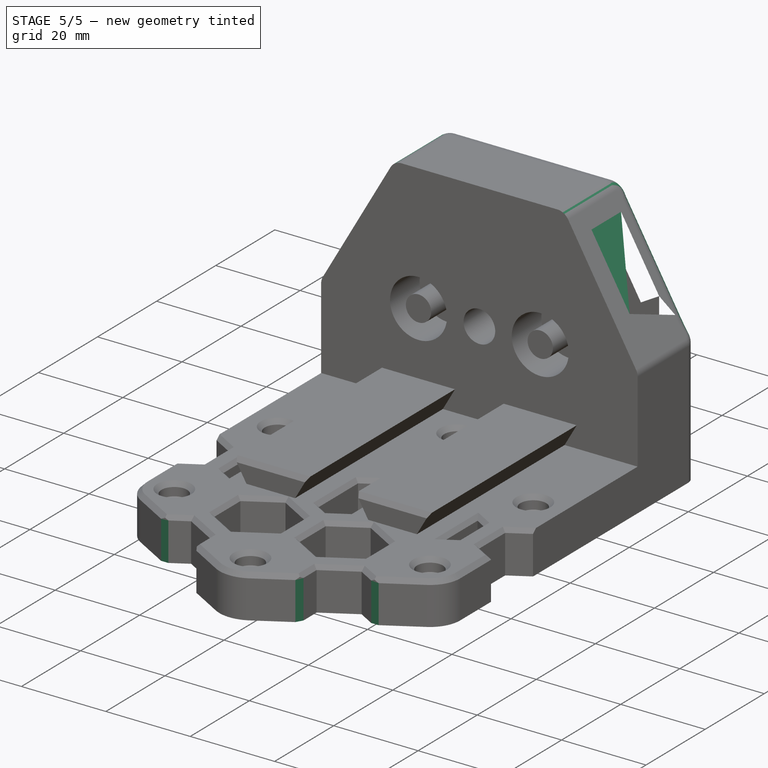
[diagram: stage 5 of 5 — iso view after this stage's code; geometry added in this stage tinted green]
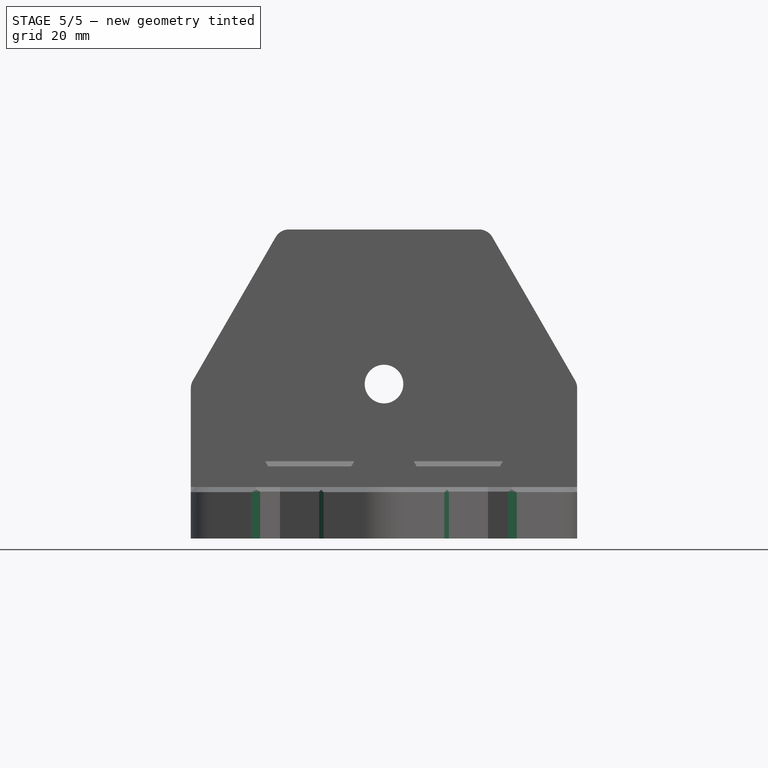
[diagram: stage 5 of 5 — front view after this stage's code; geometry added in this stage tinted green]
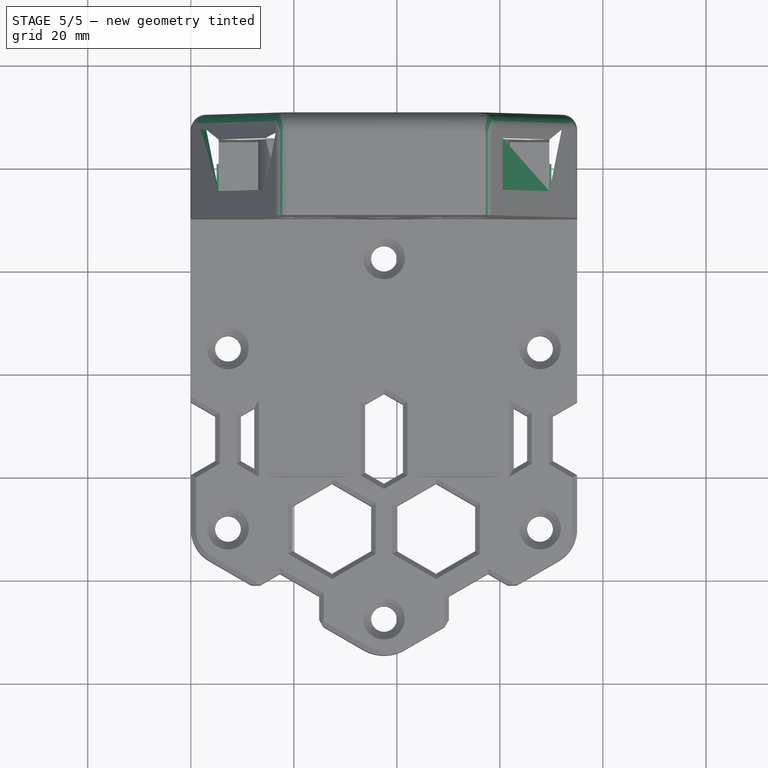
[diagram: stage 5 of 5 — top view after this stage's code; geometry added in this stage tinted green]
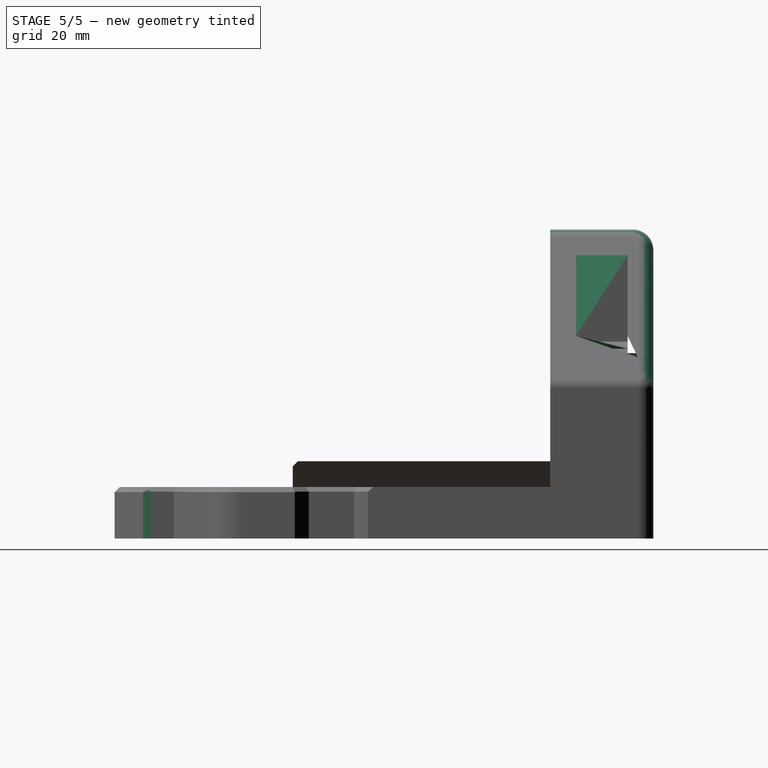
[diagram: stage 5 of 5 — right view after this stage's code; geometry added in this stage tinted green]
FEATURE [Sketcher::SketchObject] Sketch015
  ExternalGeometry = -> [Pad007]
  FullyConstrained = true
  MapMode = 5
  Placement = pos=(69.2362,8.9e-15,39.9735) rot=(0.447214,0.447214,0.774597;1.82348rad)
  Support = -> [Pad007]
  sketch-geometry (4):
    g0: LineSegment StartX=95 StartY=-0.727568 StartZ=0 EndX=105 EndY=-0.727568 EndZ=0
    g1: LineSegment StartX=105 StartY=-0.727568 StartZ=0 EndX=105 EndY=17.3511 EndZ=0
    g2: LineSegment StartX=105 StartY=17.3511 StartZ=0 EndX=95 EndY=17.3511 EndZ=0
    g3: LineSegment StartX=95 StartY=17.3511 StartZ=0 EndX=95 EndY=-0.727568 EndZ=0
  constraints (10):
    c: Coincident(g0,g1)
    c: Coincident(g1,g2)
    c: Coincident(g2,g3)
    c: Coincident(g3,g0)
    c: Horizontal(g0)
    c: Horizontal(g2)
    c: Vertical(g1)
    c: Vertical(g3)
    c: Coincident(g0,g-3)
    c: Coincident(g1,g-4)
FEATURE [PartDesign::Pad] Pad008
  BaseFeature = -> Pad007
  Direction = (1,1,1)
  Length = 5
  Length2 = 100
  Profile = -> Sketch015
  Reversed = true
  Type = 0
FEATURE [PartDesign::Fillet] Fillet002
  Base = -> Pad008 [Edge319,Edge306]
  BaseFeature = -> Pad008
  Radius = 3
  SupportTransform = false
FEATURE [Sketcher::SketchObject] Sketch016
  ExternalGeometry = -> [Fillet002]
  FullyConstrained = true
  MapMode = 5
  Placement = pos=(75,0,0) rot=(0.57735,0.57735,0.57735;2.0944rad)
  Support = -> [Fillet002]
  sketch-geometry (16):
    g0: LineSegment StartX=70.8162 StartY=3.33333 StartZ=0 EndX=76.6453 EndY=3.33333 EndZ=0
    g1: LineSegment StartX=76.6453 StartY=3.33333 StartZ=0 EndX=76.6453 EndY=6.66667 EndZ=0
    g2: LineSegment StartX=76.6453 StartY=6.66667 StartZ=0 EndX=70.8162 EndY=6.66667 EndZ=0
    g3: LineSegment StartX=70.8162 StartY=6.66667 StartZ=0 EndX=70.8162 EndY=3.33333 EndZ=0
    g4: LineSegment StartX=91.6496 StartY=3.33333 StartZ=0 EndX=100.825 EndY=3.33333 EndZ=0
    g5: LineSegment StartX=100.825 StartY=3.33333 StartZ=0 EndX=100.825 EndY=6.66667 EndZ=0
    g6: LineSegment StartX=100.825 StartY=6.66667 StartZ=0 EndX=91.6496 EndY=6.66667 EndZ=0
    g7: LineSegment StartX=91.6496 StartY=6.66667 StartZ=0 EndX=91.6496 EndY=3.33333 EndZ=0
    g8: LineSegment StartX=70.8162 StartY=3.33333 StartZ=0 EndX=70.8162 EndY=0 EndZ=0
    g9: LineSegment StartX=70.8162 StartY=6.66667 StartZ=0 EndX=70.8162 EndY=10 EndZ=0
    g10: LineSegment StartX=64.9872 StartY=3.33333 StartZ=0 EndX=70.8162 EndY=3.33333 EndZ=0
    g11: LineSegment StartX=76.6453 StartY=3.33333 StartZ=0 EndX=82.4743 EndY=3.33333 EndZ=0
    g12: LineSegment StartX=82.4743 StartY=3.33333 StartZ=0 EndX=91.6496 EndY=3.33333 EndZ=0
    g13: LineSegment StartX=100.825 StartY=3.33333 StartZ=0 EndX=110 EndY=3.33333 EndZ=0
    g14: LineSegment StartX=91.6496 StartY=6.66667 StartZ=0 EndX=91.6496 EndY=10 EndZ=0
    g15: LineSegment StartX=91.6496 StartY=3.33333 StartZ=0 EndX=91.6496 EndY=0 EndZ=0
  constraints (47):
    c: Coincident(g0,g1)
    c: Coincident(g1,g2)
    c: Coincident(g2,g3)
    c: Coincident(g3,g0)
    c: Horizontal(g0)
    c: Horizontal(g2)
    c: Vertical(g1)
    c: Vertical(g3)
    c: Coincident(g4,g5)
    c: Coincident(g5,g6)
    c: Coincident(g6,g7)
    c: Coincident(g7,g4)
    c: Horizontal(g4)
    c: Horizontal(g6)
    c: Vertical(g5)
    c: Vertical(g7)
    c: Coincident(g8,g0)
    c: PointOnObject(g8,g-7)
    c: Vertical(g8)
    c: Coincident(g9,g2)
    c: PointOnObject(g9,g-3)
    c: PointOnObject(g10,g-4)
    c: Coincident(g10,g0)
    c: Coincident(g11,g0)
    c: PointOnObject(g11,g-5)
    c: Coincident(g12,g11)
    c: Coincident(g12,g4)
    c: Coincident(g13,g4)
    c: PointOnObject(g13,g-6)
    c: Coincident(g14,g6)
    c: PointOnObject(g14,g-3)
    c: Coincident(g15,g4)
    c: PointOnObject(g15,g-7)
    c: Vertical(g9)
    c: Vertical(g14)
    c: Vertical(g15)
    c: Horizontal(g10)
    c: Horizontal(g11)
    c: Horizontal(g12)
    c: Horizontal(g13)
    c: Equal(g10,g0)
    c: Equal(g0,g11)
    c: Equal(g8,g3)
    c: Equal(g3,g9)
    c: Equal(g12,g4)
    c: Equal(g4,g13)
    c: Equal(g15,g7)
FEATURE [PartDesign::Pocket] Pocket005
  BaseFeature = -> Fillet002
  Length = 0
  Length2 = 100
  Offset = -5
  Profile = -> Sketch016
  Type = 3
  UpToFace = -> Fillet002 [Face20]
FEATURE [Sketcher::SketchObject] Sketch017
  ExternalGeometry = -> [Pocket005]
  FullyConstrained = true
  MapMode = 5
  Placement = pos=(75,0,0) rot=(0.57735,0.57735,0.57735;2.0944rad)
  Support = -> [Pocket005]
  sketch-geometry (8):
    g0: LineSegment StartX=70.8162 StartY=6.66667 StartZ=0 EndX=76.6453 EndY=6.66667 EndZ=0
    g1: LineSegment StartX=76.6453 StartY=6.66667 StartZ=0 EndX=76.6453 EndY=3.33333 EndZ=0
    g2: LineSegment StartX=76.6453 StartY=3.33333 StartZ=0 EndX=70.8162 EndY=3.33333 EndZ=0
    g3: LineSegment StartX=70.8162 StartY=3.33333 StartZ=0 EndX=70.8162 EndY=6.66667 EndZ=0
    g4: LineSegment StartX=91.6496 StartY=6.66667 StartZ=0 EndX=100.825 EndY=6.66667 EndZ=0
    g5: LineSegment StartX=100.825 StartY=6.66667 StartZ=0 EndX=100.825 EndY=3.33333 EndZ=0
    g6: LineSegment StartX=100.825 StartY=3.33333 StartZ=0 EndX=91.6496 EndY=3.33333 EndZ=0
    g7: LineSegment StartX=91.6496 StartY=3.33333 StartZ=0 EndX=91.6496 EndY=6.66667 EndZ=0
  constraints (20):
    c: Coincident(g0,g1)
    c: Coincident(g1,g2)
    c: Coincident(g2,g3)
    c: Coincident(g3,g0)
    c: Horizontal(g0)
    c: Horizontal(g2)
    c: Vertical(g1)
    c: Vertical(g3)
    c: Coincident(g0,g-3)
    c: Coincident(g1,g-4)
    c: Coincident(g4,g5)
    c: Coincident(g5,g6)
    c: Coincident(g6,g7)
    c: Coincident(g7,g4)
    c: Horizontal(g4)
    c: Horizontal(g6)
    c: Vertical(g5)
    c: Vertical(g7)
    c: Coincident(g4,g-5)
    c: Coincident(g5,g-6)
FEATURE [PartDesign::Pad] Pad009
  BaseFeature = -> Pocket005
  Direction = (1,1,1)
  Length = 5
  Length2 = 100
  Profile = -> Sketch017
  Reversed = true
  Type = 0
FEATURE [PartDesign::Chamfer] Chamfer005
  Angle = 45
  Base = -> Pad009 [Edge376,Edge380,Edge387,Edge390]
  BaseFeature = -> Pad009
  ChamferType = 0
  FlipDirection = false
  Size = 1
  Size2 = 1
  SupportTransform = false
FEATURE [PartDesign::Body] Body
  Group = -> [Sketch,Pad,Sketch001,Pad001,Sketch002,Pad002,Sketch003,Pad003,Sketch004,Pad004,Sketch005,Pad005,Sketch006,Pocket,Fillet,Fillet001,Chamfer,Sketch007,Pocket001,Chamfer001,Sketch008,Hole,Chamfer002,Sketch009,Pad006,Sketch010,Hole001,Sketch011,Pocket002,Sketch012,Pocket003,Chamfer003,Chamfer004,Sketch013,Pocket004,Sketch014,Pad007,Sketch015,Pad008,Fillet002,Sketch016,Pocket005,Sketch017,Pad009,+1 more]
  Origin = -> Origin
  Tip = -> Chamfer005
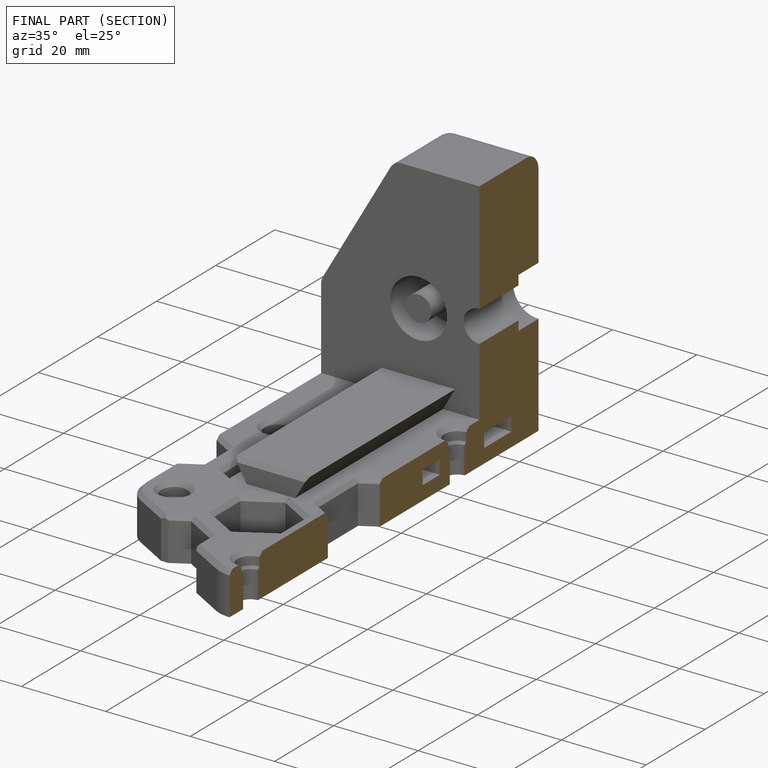
[diagram: finished part — half-section view (interior)]
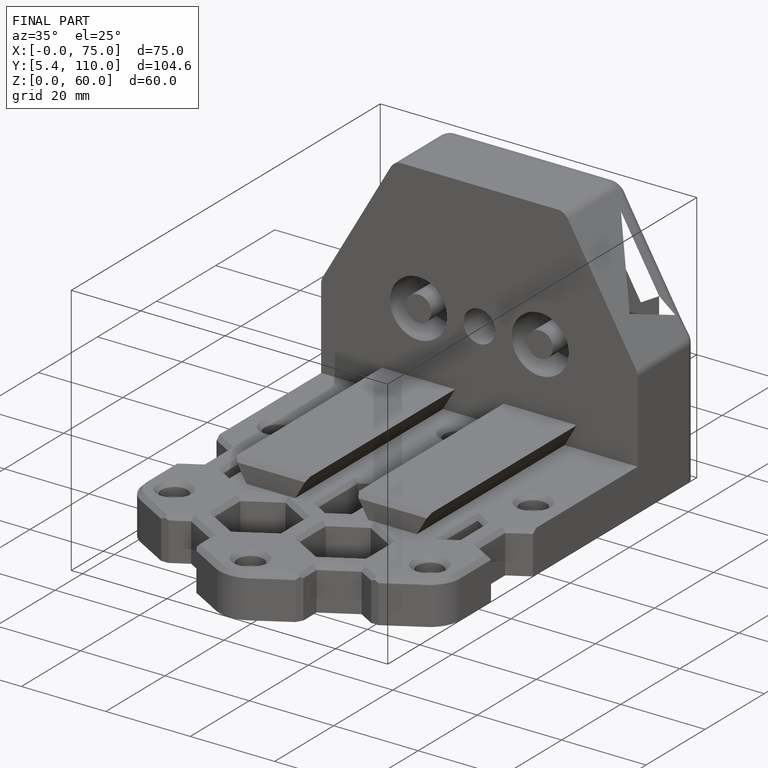
[diagram: finished part — iso view with bounding-box wireframe]
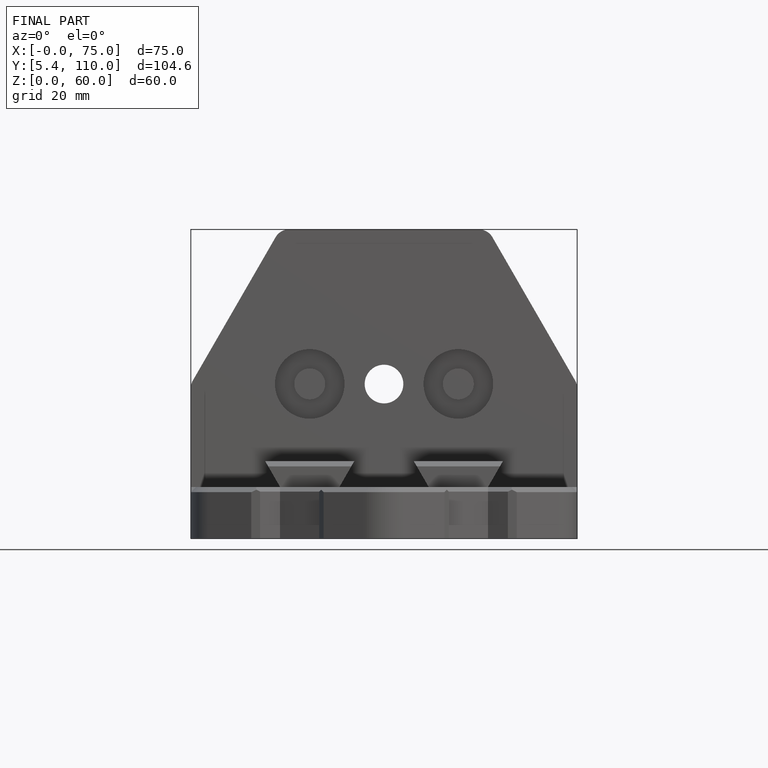
[diagram: finished part — front view with bounding-box wireframe]
